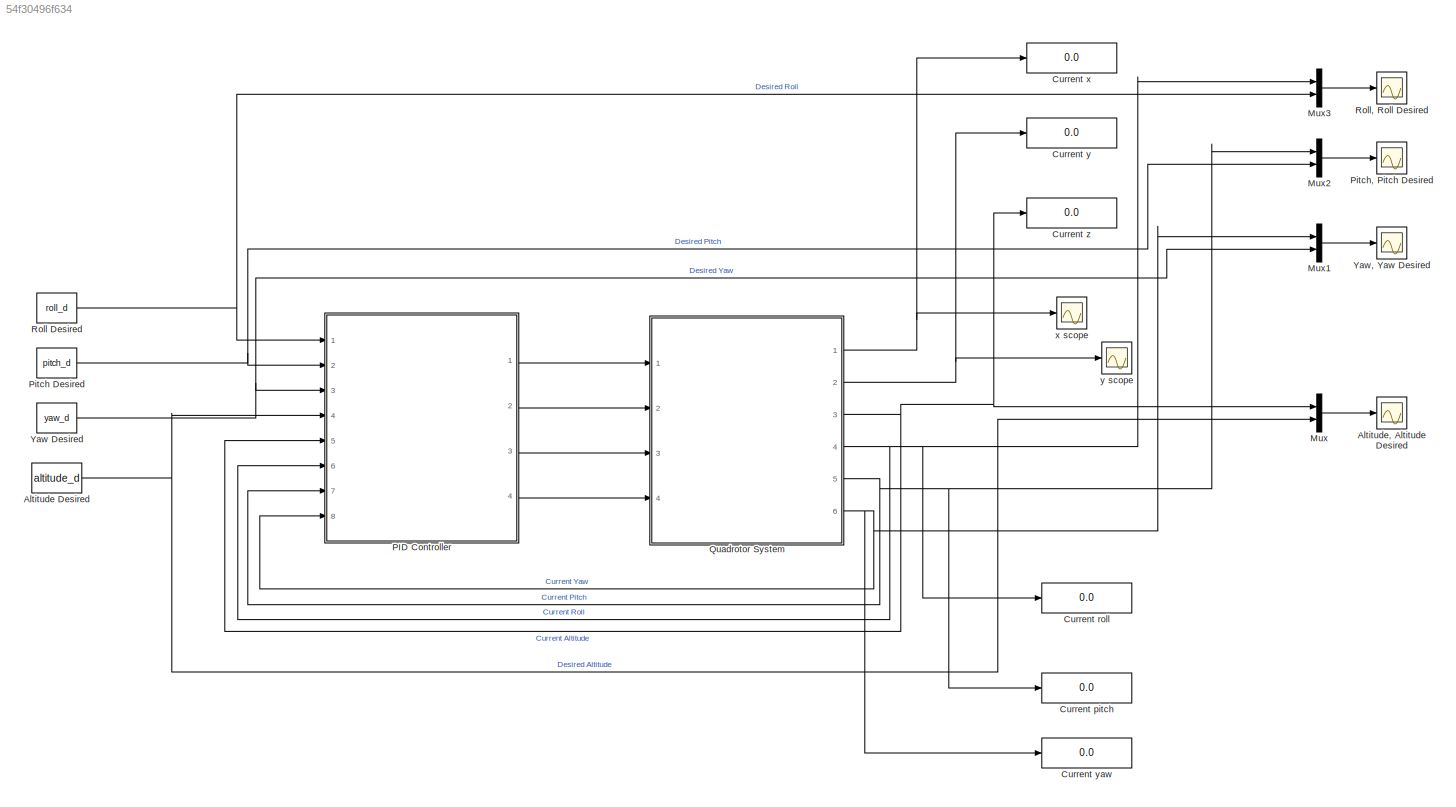
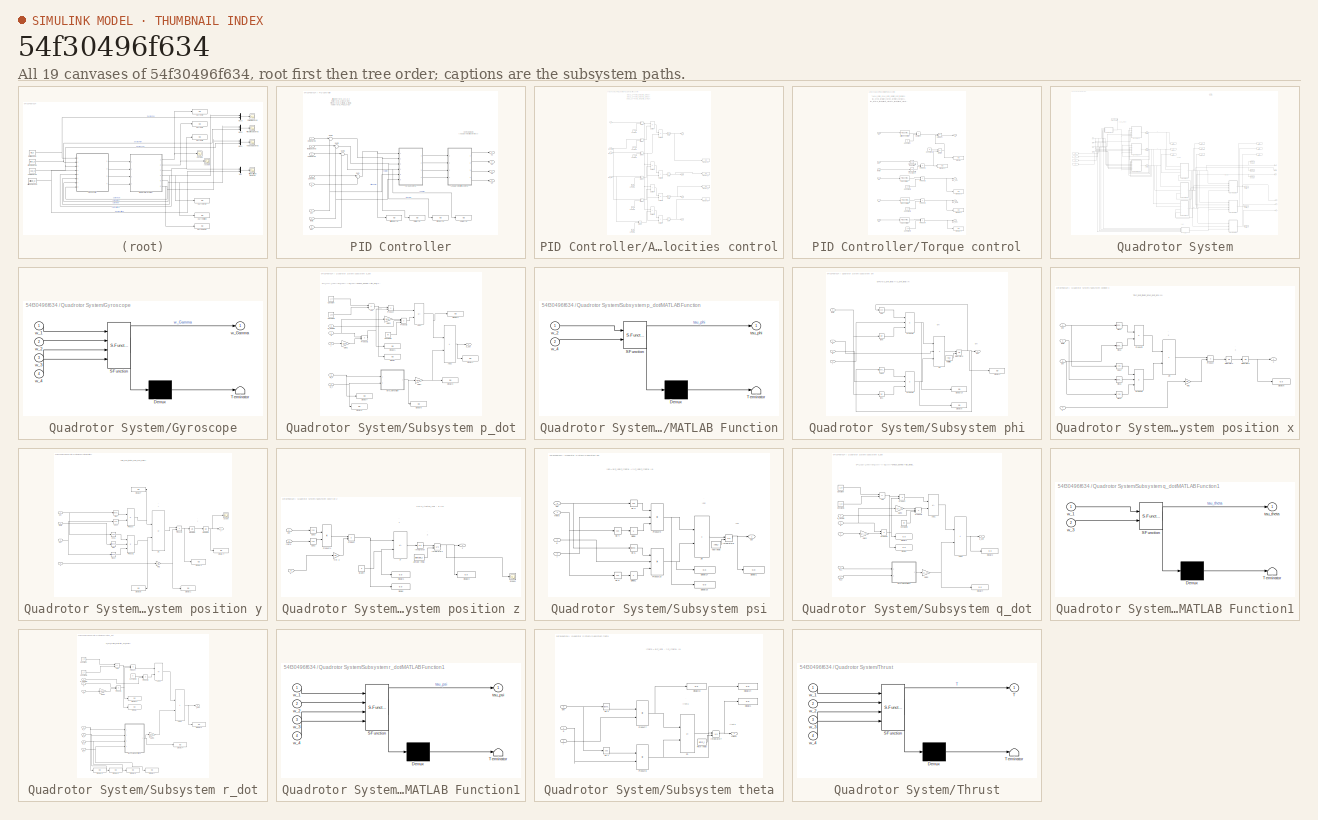
[diagram: thumbnail index - all 19 canvases of the model, root first then tree order]
MODEL slx_54f30496f634
KIND model
CONFIG AbsTol = auto
CONFIG EnableMultiTasking = off
CONFIG FixedStep = auto
CONFIG MaxStep = auto
CONFIG MinStep = auto
CONFIG RelTol = 1e-3
CONFIG SampleTimeConstraint = Unconstrained
CONFIG SolverName = ode45
CONFIG StartTime = 0.0
CONFIG StopTime = 10
BLOCK [Constant] Altitude Desired
  Value = altitude_d
BLOCK [Scope] Altitude, Altitude Desired
  Floating = off
  NumInputPorts = 1
  Ports = [1]
  ScopeSpecificationString = Simulink.scopes.TimeScopeBlockCfg('CurrentConfiguration', extmgr.ConfigurationSet(extmgr.Configuration('Core','General UI',true),extmgr.Configuration('Core','Source UI',true),extmgr.Configuration('Sources','WiredSimulink',true),extmgr.Configuration('Visuals','Time Domain',true,'SerializedDisplays',{struct('MinYLimReal','-0.37501','MaxYLimReal','3.37505','YLabelReal','','MinYLimMag','0.00000','MaxY...<+1426ch>
BLOCK [Display] Current pitch
  Decimation = 1
  Ports = [1]
BLOCK [Display] Current roll
  Decimation = 1
  Ports = [1]
BLOCK [Display] Current x
  Decimation = 1
  Ports = [1]
BLOCK [Display] Current y
  Decimation = 1
  Ports = [1]
BLOCK [Display] Current yaw
  Decimation = 1
  Ports = [1]
BLOCK [Display] Current z
  Decimation = 1
  Ports = [1]
BLOCK [Mux] Mux
  DisplayOption = bar
  Inputs = 2
  Ports = [2, 1]
BLOCK [Mux] Mux1
  DisplayOption = bar
  Inputs = 2
  Ports = [2, 1]
BLOCK [Mux] Mux2
  DisplayOption = bar
  Inputs = 2
  Ports = [2, 1]
BLOCK [Mux] Mux3
  DisplayOption = bar
  Inputs = 2
  Ports = [2, 1]
BLOCK [SubSystem] PID Controller
  Ports = [8, 4]
  RequestExecContextInheritance = off
BLOCK [Display] PID Controller/Altitude error
  Decimation = 1
  Ports = [1]
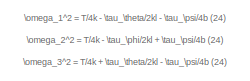
[diagram: PID Controller/Angular velocities control - part 1/3, top left region]
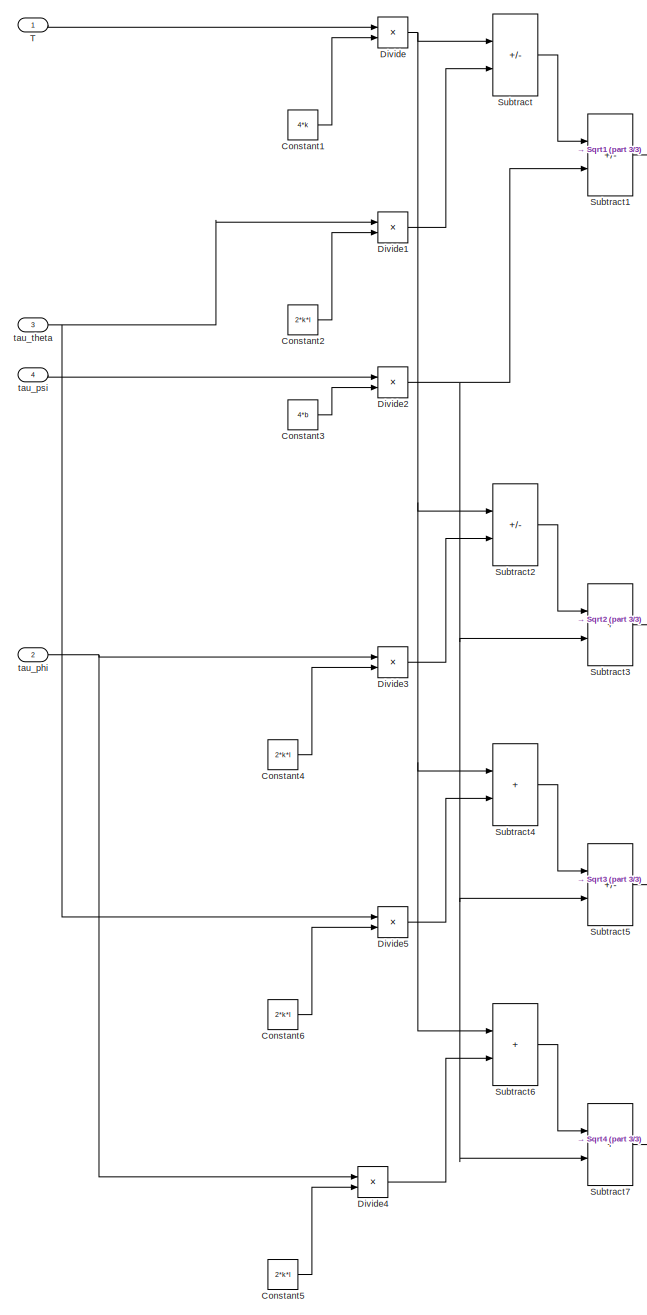
[diagram: PID Controller/Angular velocities control - part 2/3, left side, full height]
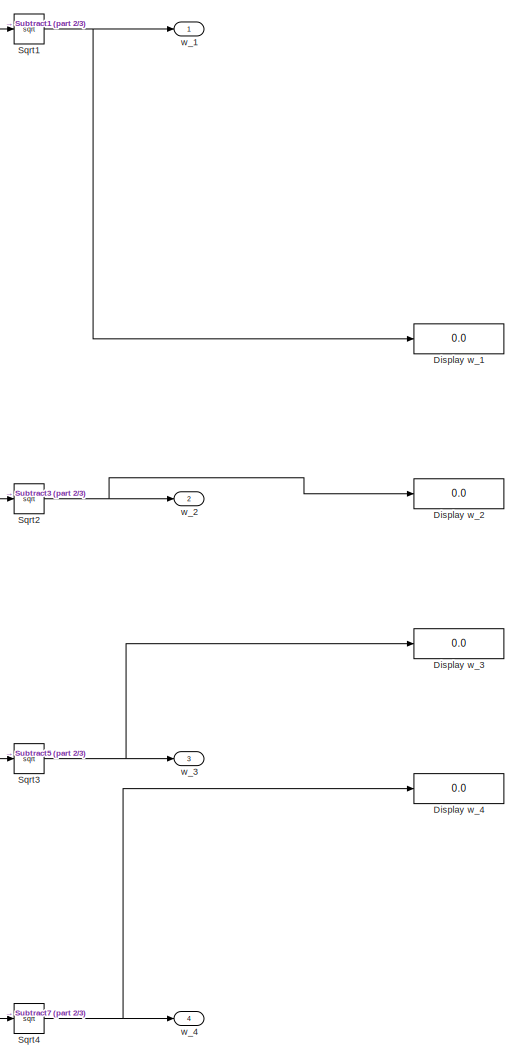
[diagram: PID Controller/Angular velocities control - part 3/3, middle right region]
BLOCK [SubSystem] PID Controller/Angular velocities control
  Ports = [4, 4]
  RequestExecContextInheritance = off
BLOCK [Constant] PID Controller/Angular velocities control/Constant1
  Value = 4*k
BLOCK [Constant] PID Controller/Angular velocities control/Constant2
  Value = 2*k*l
BLOCK [Constant] PID Controller/Angular velocities control/Constant3
  Value = 4*b
BLOCK [Constant] PID Controller/Angular velocities control/Constant4
  Value = 2*k*l
BLOCK [Constant] PID Controller/Angular velocities control/Constant5
  Value = 2*k*l
BLOCK [Constant] PID Controller/Angular velocities control/Constant6
  Value = 2*k*l
BLOCK [Display] PID Controller/Angular velocities control/Display w_1
  Decimation = 1
  Ports = [1]
BLOCK [Display] PID Controller/Angular velocities control/Display w_2
  Decimation = 1
  Ports = [1]
BLOCK [Display] PID Controller/Angular velocities control/Display w_3
  Decimation = 1
  Ports = [1]
BLOCK [Display] PID Controller/Angular velocities control/Display w_4
  Decimation = 1
  Ports = [1]
BLOCK [Product] PID Controller/Angular velocities control/Divide
  Inputs = */
  Ports = [2, 1]
BLOCK [Product] PID Controller/Angular velocities control/Divide1
  Inputs = */
  Ports = [2, 1]
BLOCK [Product] PID Controller/Angular velocities control/Divide2
  Inputs = */
  Ports = [2, 1]
BLOCK [Product] PID Controller/Angular velocities control/Divide3
  Inputs = */
  Ports = [2, 1]
BLOCK [Product] PID Controller/Angular velocities control/Divide4
  Inputs = */
  Ports = [2, 1]
BLOCK [Product] PID Controller/Angular velocities control/Divide5
  Inputs = */
  Ports = [2, 1]
BLOCK [Sqrt] PID Controller/Angular velocities control/Sqrt1
BLOCK [Sqrt] PID Controller/Angular velocities control/Sqrt2
  OutputSignalType = real
BLOCK [Sqrt] PID Controller/Angular velocities control/Sqrt3
BLOCK [Sqrt] PID Controller/Angular velocities control/Sqrt4
BLOCK [Sum] PID Controller/Angular velocities control/Subtract
  IconShape = rectangular
  Inputs = +-
  Ports = [2, 1]
BLOCK [Sum] PID Controller/Angular velocities control/Subtract1
  IconShape = rectangular
  Inputs = +-
  Ports = [2, 1]
BLOCK [Sum] PID Controller/Angular velocities control/Subtract2
  IconShape = rectangular
  Inputs = +-
  Ports = [2, 1]
BLOCK [Sum] PID Controller/Angular velocities control/Subtract3
  IconShape = rectangular
  Ports = [2, 1]
BLOCK [Sum] PID Controller/Angular velocities control/Subtract4
  IconShape = rectangular
  Ports = [2, 1]
BLOCK [Sum] PID Controller/Angular velocities control/Subtract5
  IconShape = rectangular
  Inputs = +-
  Ports = [2, 1]
BLOCK [Sum] PID Controller/Angular velocities control/Subtract6
  IconShape = rectangular
  Ports = [2, 1]
BLOCK [Sum] PID Controller/Angular velocities control/Subtract7
  IconShape = rectangular
  Ports = [2, 1]
BLOCK [Inport] PID Controller/Angular velocities control/T
BLOCK [Inport] PID Controller/Angular velocities control/tau_phi
  Port = 2
BLOCK [Inport] PID Controller/Angular velocities control/tau_psi 
  Port = 4
BLOCK [Inport] PID Controller/Angular velocities control/tau_theta
  Port = 3
BLOCK [Outport] PID Controller/Angular velocities control/w_1
BLOCK [Outport] PID Controller/Angular velocities control/w_2
  Port = 2
BLOCK [Outport] PID Controller/Angular velocities control/w_3
  Port = 3
BLOCK [Outport] PID Controller/Angular velocities control/w_4 
  Port = 4
BLOCK [Display] PID Controller/Pitch error
  Decimation = 1
  Ports = [1]
BLOCK [Display] PID Controller/Roll error
  Decimation = 1
  Ports = [1]
BLOCK [Sum] PID Controller/Sum
  Inputs = |+-
  Ports = [2, 1]
BLOCK [Sum] PID Controller/Sum1
  Inputs = |+-
  Ports = [2, 1]
BLOCK [Sum] PID Controller/Sum2
  Inputs = |+-
  Ports = [2, 1]
BLOCK [Sum] PID Controller/Sum3
  Inputs = |+-
  Ports = [2, 1]
BLOCK [SubSystem] PID Controller/Torque control
  Ports = [6, 4]
  RequestExecContextInheritance = off
BLOCK [Reference] PID Controller/Torque control/Altitude controller  REF=slpidlib/PID Controller
  Ports = [1, 1]
  SourceBlock = slpidlib/PID Controller
  SourceProductBaseCode = SL
  SourceType = PID 1dof
BLOCK [Constant] PID Controller/Torque control/Constant
  Value = g
BLOCK [Constant] PID Controller/Torque control/Constant1
  Value = m
BLOCK [Constant] PID Controller/Torque control/Constant2
  Value = I_xx
BLOCK [Constant] PID Controller/Torque control/Constant3
  Value = I_yy
BLOCK [Constant] PID Controller/Torque control/Constant4
  Value = I_zz
BLOCK [Display] PID Controller/Torque control/Display
  Decimation = 1
  Ports = [1]
BLOCK [Display] PID Controller/Torque control/Display1
  Decimation = 1
  Ports = [1]
BLOCK [Display] PID Controller/Torque control/Display2
  Decimation = 1
  Ports = [1]
BLOCK [Display] PID Controller/Torque control/Display3
  Decimation = 1
  Ports = [1]
BLOCK [Display] PID Controller/Torque control/Display4
  Decimation = 1
  Ports = [1]
BLOCK [Product] PID Controller/Torque control/Divide
  Inputs = */
  Ports = [2, 1]
BLOCK [Reference] PID Controller/Torque control/Pitch controller  REF=slpidlib/PID Controller
  Ports = [1, 1]
  SourceBlock = slpidlib/PID Controller
  SourceProductBaseCode = SL
  SourceType = PID 1dof
BLOCK [Product] PID Controller/Torque control/Product
  Ports = [2, 1]
BLOCK [Product] PID Controller/Torque control/Product1
  Ports = [2, 1]
BLOCK [Product] PID Controller/Torque control/Product2
  Ports = [2, 1]
BLOCK [Product] PID Controller/Torque control/Product3
  Ports = [2, 1]
BLOCK [Product] PID Controller/Torque control/Product4
  Ports = [2, 1]
BLOCK [Reference] PID Controller/Torque control/Roll controller  REF=slpidlib/PID Controller
  Ports = [1, 1]
  SourceBlock = slpidlib/PID Controller
  SourceProductBaseCode = SL
  SourceType = PID 1dof
BLOCK [Sum] PID Controller/Torque control/Subtract
  IconShape = rectangular
  Ports = [2, 1]
BLOCK [Outport] PID Controller/Torque control/T
BLOCK [Trigonometry] PID Controller/Torque control/Trigonometric Function
  Operator = cos
  Ports = [1, 1]
BLOCK [Trigonometry] PID Controller/Torque control/Trigonometric Function1
  Operator = cos
  Ports = [1, 1]
BLOCK [Reference] PID Controller/Torque control/Yaw controller  REF=slpidlib/PID Controller
  Ports = [1, 1]
  SourceBlock = slpidlib/PID Controller
  SourceProductBaseCode = SL
  SourceType = PID 1dof
BLOCK [Inport] PID Controller/Torque control/e1
BLOCK [Inport] PID Controller/Torque control/e2
  Port = 2
BLOCK [Inport] PID Controller/Torque control/e3
  Port = 3
BLOCK [Inport] PID Controller/Torque control/e4
  Port = 4
BLOCK [Inport] PID Controller/Torque control/phi 
  Port = 5
BLOCK [Outport] PID Controller/Torque control/tau_phi
  Port = 2
BLOCK [Outport] PID Controller/Torque control/tau_psi
  Port = 4
BLOCK [Outport] PID Controller/Torque control/tau_theta
  Port = 3
BLOCK [Inport] PID Controller/Torque control/theta 
  Port = 6
BLOCK [Display] PID Controller/Yaw error
  Decimation = 1
  Ports = [1]
BLOCK [Inport] PID Controller/phi
  Port = 6
BLOCK [Inport] PID Controller/phi desired
BLOCK [Inport] PID Controller/psi
  Port = 8
BLOCK [Inport] PID Controller/psi desired
  Port = 3
BLOCK [Inport] PID Controller/theta
  Port = 7
BLOCK [Inport] PID Controller/theta desired
  Port = 2
BLOCK [Outport] PID Controller/u1
BLOCK [Outport] PID Controller/u2
  Port = 2
BLOCK [Outport] PID Controller/u3
  Port = 3
BLOCK [Outport] PID Controller/u4
  Port = 4
BLOCK [Inport] PID Controller/z
  Port = 5
BLOCK [Inport] PID Controller/z desired
  Port = 4
BLOCK [Constant] Pitch Desired
  Value = pitch_d
BLOCK [Scope] Pitch, Pitch Desired
  Floating = off
  NumInputPorts = 1
  Ports = [1]
  ScopeSpecificationString = Simulink.scopes.TimeScopeBlockCfg('CurrentConfiguration', extmgr.ConfigurationSet(extmgr.Configuration('Core','General UI',true),extmgr.Configuration('Core','Source UI',true),extmgr.Configuration('Sources','WiredSimulink',true,'DataLoggingVariableName','ScopeData3'),extmgr.Configuration('Visuals','Time Domain',true,'SerializedDisplays',{struct('MinYLimReal','-1.0697','MaxYLimReal','0.62726','YLabe...<+1465ch>
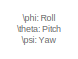
[diagram: Quadrotor System - part 1/10, top right region]
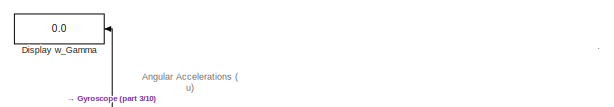
[diagram: Quadrotor System - part 2/10, top left region]
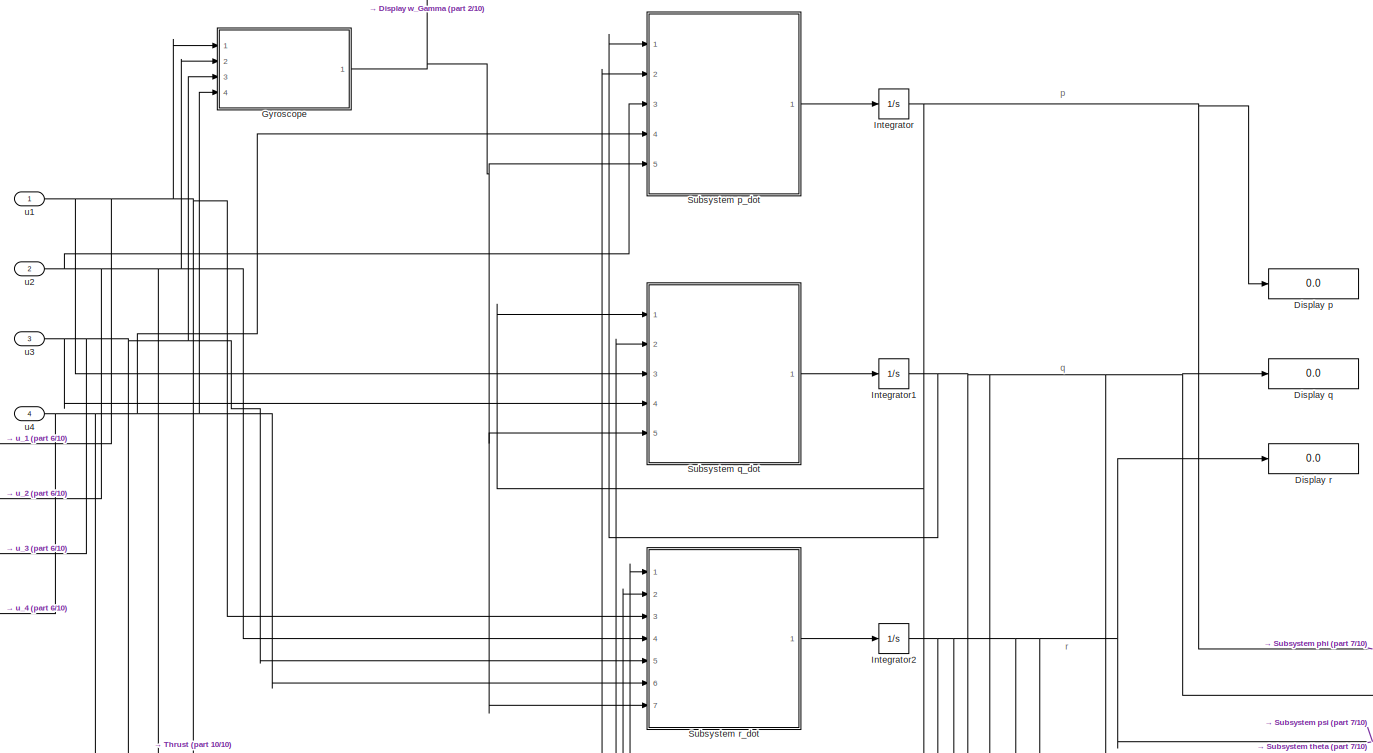
[diagram: Quadrotor System - part 3/10, middle left region]
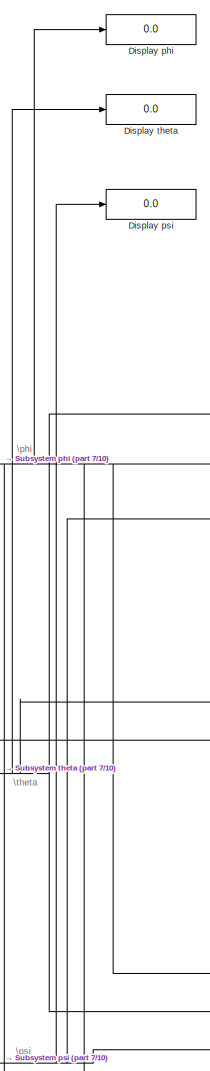
[diagram: Quadrotor System - part 4/10, central region]
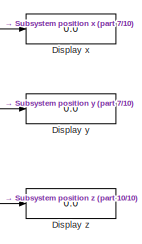
[diagram: Quadrotor System - part 5/10, middle right region]
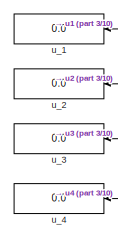
[diagram: Quadrotor System - part 6/10, middle left region]
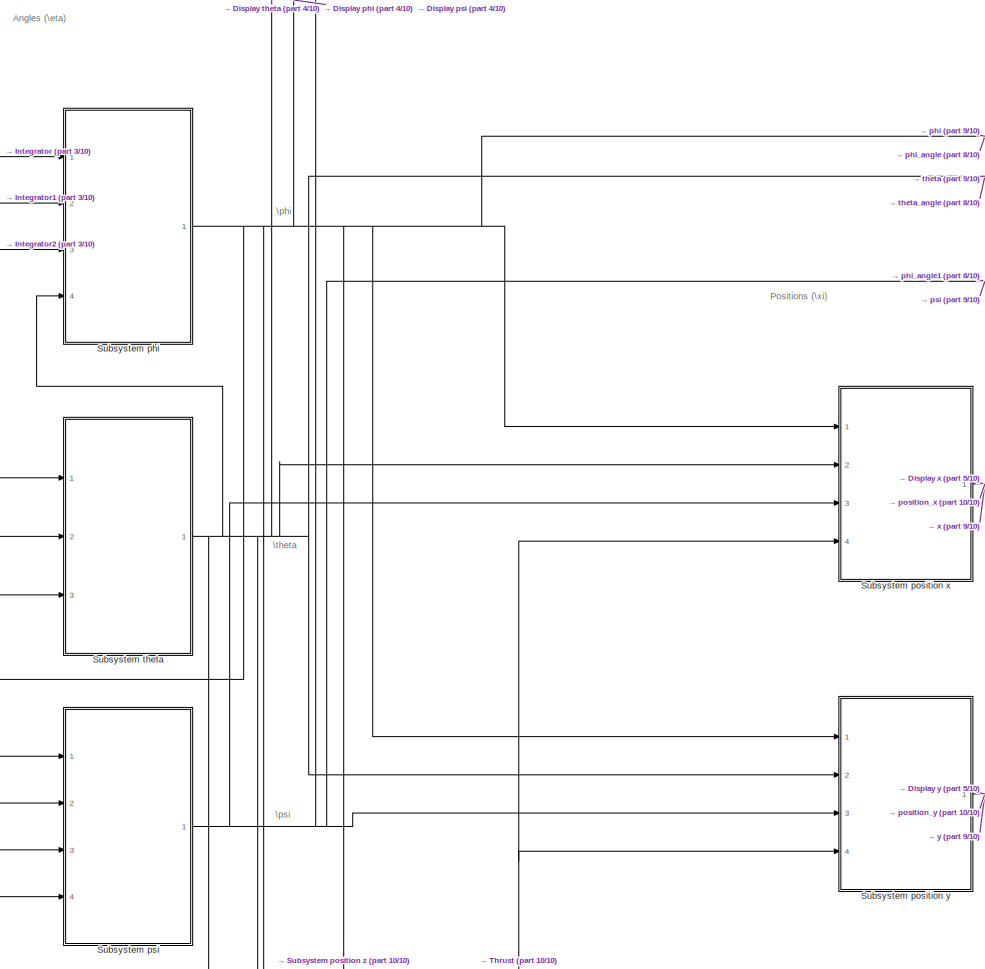
[diagram: Quadrotor System - part 7/10, central region]
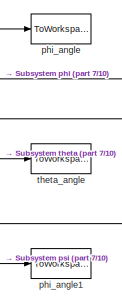
[diagram: Quadrotor System - part 8/10, middle right region]
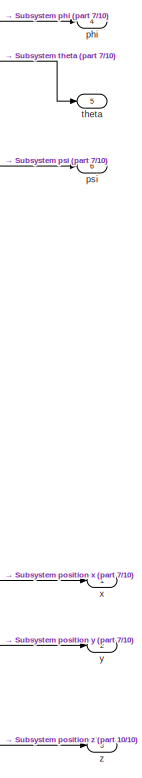
[diagram: Quadrotor System - part 9/10, bottom right region]
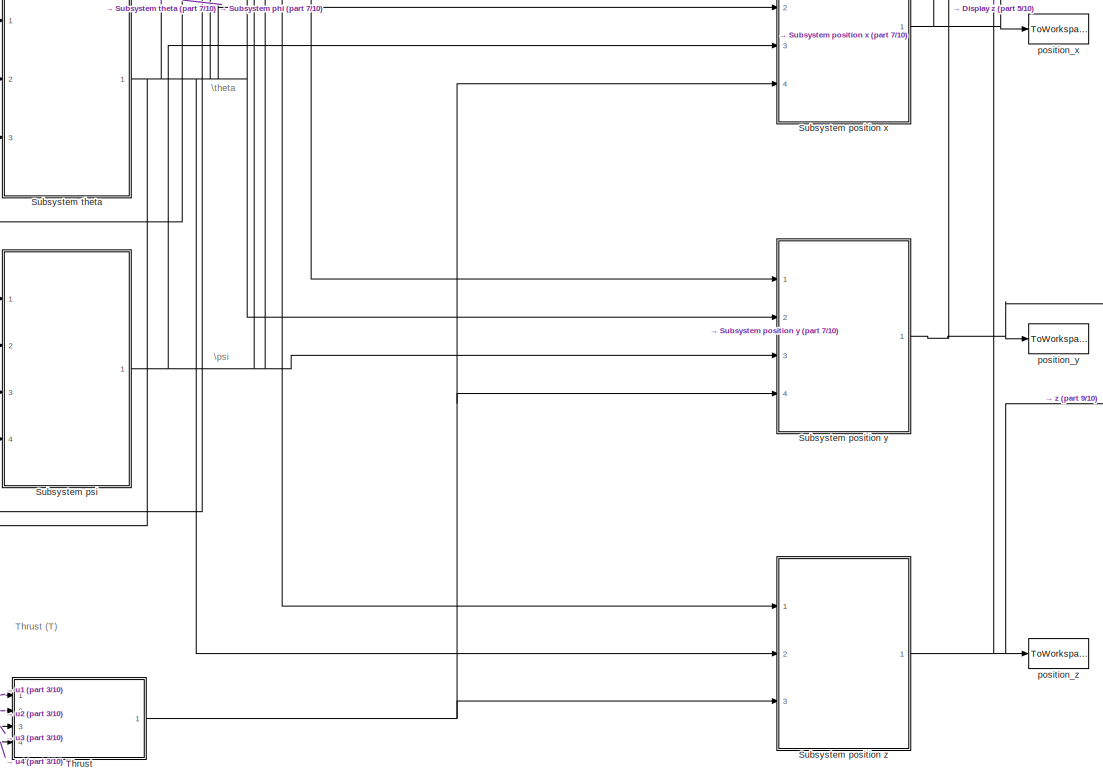
[diagram: Quadrotor System - part 10/10, bottom right region]
BLOCK [SubSystem] Quadrotor System
  Ports = [4, 6]
  RequestExecContextInheritance = off
BLOCK [Display] Quadrotor System/Display p
  Decimation = 1
  Ports = [1]
BLOCK [Display] Quadrotor System/Display phi
  Decimation = 1
  Ports = [1]
BLOCK [Display] Quadrotor System/Display psi
  Decimation = 1
  Ports = [1]
BLOCK [Display] Quadrotor System/Display q
  Decimation = 1
  Ports = [1]
BLOCK [Display] Quadrotor System/Display r
  Decimation = 1
  Ports = [1]
BLOCK [Display] Quadrotor System/Display theta
  Decimation = 1
  Ports = [1]
BLOCK [Display] Quadrotor System/Display w_Gamma
  Decimation = 1
  NameLocation = top
  Ports = [1]
BLOCK [Display] Quadrotor System/Display x
  Decimation = 1
  Ports = [1]
BLOCK [Display] Quadrotor System/Display y
  Decimation = 1
  Ports = [1]
BLOCK [Display] Quadrotor System/Display z
  Decimation = 1
  Ports = [1]
BLOCK [SubSystem] Quadrotor System/Gyroscope
  ErrorFcn = Stateflow.Translate.translate
  PermitHierarchicalResolution = ExplicitOnly
  Ports = [4, 1]
  RequestExecContextInheritance = off
  SFBlockType = MATLAB Function
  TreatAsAtomicUnit = on
BLOCK [Demux] Quadrotor System/Gyroscope/ Demux 
  Outputs = 1
  Ports = [1, 1]
BLOCK [S-Function] Quadrotor System/Gyroscope/ SFunction 
  EnableBusSupport = on
  FunctionName = sf_sfun
  PortCounts = [4 2]
  Ports = [4, 2]
  SFcnIsStateOwnerBlock = off
  SFunctionDeploymentMode = off
  Tag = Stateflow S-Function 7
BLOCK [Terminator] Quadrotor System/Gyroscope/ Terminator 
BLOCK [Inport] Quadrotor System/Gyroscope/w_1
BLOCK [Inport] Quadrotor System/Gyroscope/w_2
  Port = 2
BLOCK [Inport] Quadrotor System/Gyroscope/w_3
  Port = 3
BLOCK [Inport] Quadrotor System/Gyroscope/w_4
  Port = 4
BLOCK [Outport] Quadrotor System/Gyroscope/w_Gamma
BLOCK [Integrator] Quadrotor System/Integrator
  Ports = [1, 1]
BLOCK [Integrator] Quadrotor System/Integrator1
  Ports = [1, 1]
BLOCK [Integrator] Quadrotor System/Integrator2
  Ports = [1, 1]
BLOCK [SubSystem] Quadrotor System/Subsystem p_dot
  Ports = [5, 1]
  RequestExecContextInheritance = off
BLOCK [Sum] Quadrotor System/Subsystem p_dot/Add
  IconShape = rectangular
  Inputs = +-
  Ports = [2, 1]
BLOCK [Sum] Quadrotor System/Subsystem p_dot/Add1
  IconShape = rectangular
  Inputs = +-
  Ports = [2, 1]
BLOCK [Sum] Quadrotor System/Subsystem p_dot/Add2
  IconShape = rectangular
  Ports = [2, 1]
BLOCK [Constant] Quadrotor System/Subsystem p_dot/Constant
  Value = I_yy
BLOCK [Constant] Quadrotor System/Subsystem p_dot/Constant1
  Value = I_zz
BLOCK [Constant] Quadrotor System/Subsystem p_dot/Constant2
  Value = Im
BLOCK [Display] Quadrotor System/Subsystem p_dot/Display
  Decimation = 1
  Ports = [1]
BLOCK [Display] Quadrotor System/Subsystem p_dot/Display1
  Decimation = 1
  Ports = [1]
BLOCK [Display] Quadrotor System/Subsystem p_dot/Display2
  Decimation = 1
  Ports = [1]
BLOCK [Display] Quadrotor System/Subsystem p_dot/Display3
  Decimation = 1
  Ports = [1]
BLOCK [Display] Quadrotor System/Subsystem p_dot/Display4
  Decimation = 1
  Ports = [1]
BLOCK [Display] Quadrotor System/Subsystem p_dot/Display5
  Decimation = 1
  Ports = [1]
BLOCK [Display] Quadrotor System/Subsystem p_dot/Display6
  Decimation = 1
  Ports = [1]
BLOCK [Display] Quadrotor System/Subsystem p_dot/Display7
  Decimation = 1
  Ports = [1]
BLOCK [Gain] Quadrotor System/Subsystem p_dot/Gain2
  Gain = 1/I_xx
BLOCK [Gain] Quadrotor System/Subsystem p_dot/Gain3
  Gain = 1/I_xx
BLOCK [Gain] Quadrotor System/Subsystem p_dot/Gain4
  Gain = 1/I_xx
BLOCK [SubSystem] Quadrotor System/Subsystem p_dot/MATLAB Function
  ErrorFcn = Stateflow.Translate.translate
  PermitHierarchicalResolution = ExplicitOnly
  Ports = [2, 1]
  RequestExecContextInheritance = off
  SFBlockType = MATLAB Function
  TreatAsAtomicUnit = on
BLOCK [Demux] Quadrotor System/Subsystem p_dot/MATLAB Function/ Demux 
  Outputs = 1
  Ports = [1, 1]
BLOCK [S-Function] Quadrotor System/Subsystem p_dot/MATLAB Function/ SFunction 
  EnableBusSupport = on
  FunctionName = sf_sfun
  PortCounts = [2 2]
  Ports = [2, 2]
  SFcnIsStateOwnerBlock = off
  SFunctionDeploymentMode = off
  Tag = Stateflow S-Function 2
BLOCK [Terminator] Quadrotor System/Subsystem p_dot/MATLAB Function/ Terminator 
BLOCK [Outport] Quadrotor System/Subsystem p_dot/MATLAB Function/tau_phi
BLOCK [Inport] Quadrotor System/Subsystem p_dot/MATLAB Function/w_2
BLOCK [Inport] Quadrotor System/Subsystem p_dot/MATLAB Function/w_4
  Port = 2
BLOCK [Product] Quadrotor System/Subsystem p_dot/Product
  Ports = [2, 1]
BLOCK [Product] Quadrotor System/Subsystem p_dot/Product1
  Ports = [2, 1]
BLOCK [Product] Quadrotor System/Subsystem p_dot/Product2
  Inputs = 3
  Ports = [3, 1]
BLOCK [Outport] Quadrotor System/Subsystem p_dot/p_dot
BLOCK [Inport] Quadrotor System/Subsystem p_dot/q
BLOCK [Inport] Quadrotor System/Subsystem p_dot/r
  Port = 2
BLOCK [Inport] Quadrotor System/Subsystem p_dot/w_2
  Port = 3
BLOCK [Inport] Quadrotor System/Subsystem p_dot/w_4
  Port = 4
BLOCK [Inport] Quadrotor System/Subsystem p_dot/w_Gamma 
  Port = 5
BLOCK [SubSystem] Quadrotor System/Subsystem phi
  Ports = [4, 1]
  RequestExecContextInheritance = off
BLOCK [Display] Quadrotor System/Subsystem phi/Display1
  Decimation = 1
  Ports = [1]
BLOCK [Display] Quadrotor System/Subsystem phi/Display10
  Decimation = 1
  Ports = [1]
BLOCK [Display] Quadrotor System/Subsystem phi/Display9
  Decimation = 1
  Ports = [1]
BLOCK [Integrator] Quadrotor System/Subsystem phi/Integrator6
  InitialCondition = -0.1
  InitialConditionSource = external
  Ports = [2, 1]
BLOCK [Product] Quadrotor System/Subsystem phi/Product5
  Inputs = 3
  Ports = [3, 1]
BLOCK [Product] Quadrotor System/Subsystem phi/Product6
  Inputs = 3
  Ports = [3, 1]
BLOCK [Constant] Quadrotor System/Subsystem phi/Roll Initial
  Value = roll_i
BLOCK [Sum] Quadrotor System/Subsystem phi/Z''3
  IconShape = rectangular
  Inputs = +++
  Ports = [3, 1]
BLOCK [Trigonometry] Quadrotor System/Subsystem phi/cos 
  Operator = cos
  Ports = [1, 1]
BLOCK [Trigonometry] Quadrotor System/Subsystem phi/cos 1
  Ports = [1, 1]
BLOCK [Inport] Quadrotor System/Subsystem phi/p
BLOCK [Outport] Quadrotor System/Subsystem phi/phi 
BLOCK [Inport] Quadrotor System/Subsystem phi/q
  Port = 2
BLOCK [Inport] Quadrotor System/Subsystem phi/r
  Port = 3
BLOCK [Trigonometry] Quadrotor System/Subsystem phi/tan 1
  Operator = tan
  Ports = [1, 1]
BLOCK [Trigonometry] Quadrotor System/Subsystem phi/tan 5
  Operator = tan
  Ports = [1, 1]
BLOCK [Inport] Quadrotor System/Subsystem phi/theta
  Port = 4
BLOCK [SubSystem] Quadrotor System/Subsystem position x
  Ports = [4, 1]
  RequestExecContextInheritance = off
BLOCK [Trigonometry] Quadrotor System/Subsystem position x/Cos1
  Operator = cos
  Ports = [1, 1]
BLOCK [Display] Quadrotor System/Subsystem position x/Display6
  Decimation = 1
  Ports = [1]
BLOCK [Integrator] Quadrotor System/Subsystem position x/Integrator4
  Ports = [1, 1]
BLOCK [Integrator] Quadrotor System/Subsystem position x/Integrator5
  Ports = [1, 1]
BLOCK [Product] Quadrotor System/Subsystem position x/Product
  Ports = [2, 1]
BLOCK [Product] Quadrotor System/Subsystem position x/Product2
  Ports = [2, 1]
BLOCK [Product] Quadrotor System/Subsystem position x/Product3
  Inputs = 3
  Ports = [3, 1]
BLOCK [Trigonometry] Quadrotor System/Subsystem position x/Sin1 1
  Ports = [1, 1]
BLOCK [Trigonometry] Quadrotor System/Subsystem position x/Sin1 2
  Ports = [1, 1]
BLOCK [Trigonometry] Quadrotor System/Subsystem position x/Sin1 3
  Ports = [1, 1]
BLOCK [Trigonometry] Quadrotor System/Subsystem position x/Sin1 4
  Operator = cos
  Ports = [1, 1]
BLOCK [Inport] Quadrotor System/Subsystem position x/T
  Port = 4
BLOCK [Gain] Quadrotor System/Subsystem position x/T//m 2
  Gain = 1/m
BLOCK [Sum] Quadrotor System/Subsystem position x/Z''2
  IconShape = rectangular
  Ports = [2, 1]
BLOCK [Inport] Quadrotor System/Subsystem position x/phi 
BLOCK [Inport] Quadrotor System/Subsystem position x/psi 
  Port = 3
BLOCK [Inport] Quadrotor System/Subsystem position x/theta 
  Port = 2
BLOCK [Outport] Quadrotor System/Subsystem position x/x
BLOCK [SubSystem] Quadrotor System/Subsystem position y
  Ports = [4, 1]
  RequestExecContextInheritance = off
BLOCK [Trigonometry] Quadrotor System/Subsystem position y/Cos4
  Operator = cos
  Ports = [1, 1]
BLOCK [Trigonometry] Quadrotor System/Subsystem position y/Cos5
  Operator = cos
  Ports = [1, 1]
BLOCK [Display] Quadrotor System/Subsystem position y/Display1
  Decimation = 1
  Ports = [1]
BLOCK [Display] Quadrotor System/Subsystem position y/Display3
  Decimation = 1
  Ports = [1]
BLOCK [Display] Quadrotor System/Subsystem position y/Display4
  Decimation = 1
  Ports = [1]
BLOCK [Display] Quadrotor System/Subsystem position y/Display7
  Decimation = 1
  NameLocation = top
  Ports = [1]
BLOCK [Display] Quadrotor System/Subsystem position y/Display8
  Decimation = 1
  NameLocation = top
  Ports = [1]
BLOCK [Integrator] Quadrotor System/Subsystem position y/Integrator2
  Ports = [1, 1]
BLOCK [Integrator] Quadrotor System/Subsystem position y/Integrator3
  Ports = [1, 1]
BLOCK [Product] Quadrotor System/Subsystem position y/Product
  Ports = [2, 1]
BLOCK [Product] Quadrotor System/Subsystem position y/Product1
  Inputs = 3
  Ports = [3, 1]
BLOCK [Product] Quadrotor System/Subsystem position y/Product2
  Ports = [2, 1]
BLOCK [Scope] Quadrotor System/Subsystem position y/Scope
  Floating = off
  NumInputPorts = 1
  Ports = [1]
  ScopeSpecificationString = Simulink.scopes.TimeScopeBlockCfg('CurrentConfiguration', extmgr.ConfigurationSet(extmgr.Configuration('Core','General UI',true),extmgr.Configuration('Core','Source UI',true),extmgr.Configuration('Sources','WiredSimulink',true),extmgr.Configuration('Visuals','Time Domain',true,'SerializedDisplays',{struct('MinYLimReal','-1179.08654','MaxYLimReal','131.00962','YLabelReal','','MinYLimMag','  0.00000...<+1453ch>
BLOCK [Trigonometry] Quadrotor System/Subsystem position y/Sin1 
  Ports = [1, 1]
BLOCK [Trigonometry] Quadrotor System/Subsystem position y/Sin2 
  Ports = [1, 1]
BLOCK [Trigonometry] Quadrotor System/Subsystem position y/Sin2 1
  Ports = [1, 1]
BLOCK [Inport] Quadrotor System/Subsystem position y/T 
  Port = 4
BLOCK [Gain] Quadrotor System/Subsystem position y/T//m 2
  Gain = 1/m
BLOCK [Sum] Quadrotor System/Subsystem position y/Z''1
  IconShape = rectangular
  Inputs = -+
  Ports = [2, 1]
BLOCK [Inport] Quadrotor System/Subsystem position y/phi 
BLOCK [Inport] Quadrotor System/Subsystem position y/psi 
  Port = 3
BLOCK [Inport] Quadrotor System/Subsystem position y/theta 
  Port = 2
BLOCK [Outport] Quadrotor System/Subsystem position y/y 
BLOCK [SubSystem] Quadrotor System/Subsystem position z
  Ports = [3, 1]
  RequestExecContextInheritance = off
BLOCK [Constant] Quadrotor System/Subsystem position z/Altitude Initial
  Value = altitude_i
BLOCK [Trigonometry] Quadrotor System/Subsystem position z/Cos2
  Operator = cos
  Ports = [1, 1]
BLOCK [Trigonometry] Quadrotor System/Subsystem position z/Cos3
  Operator = cos
  Ports = [1, 1]
BLOCK [Display] Quadrotor System/Subsystem position z/Display
  Decimation = 1
  Ports = [1]
BLOCK [Display] Quadrotor System/Subsystem position z/Display1
  Decimation = 1
  Ports = [1]
BLOCK [Display] Quadrotor System/Subsystem position z/Display2
  Decimation = 1
  Ports = [1]
BLOCK [Constant] Quadrotor System/Subsystem position z/Gravity
  Value = g
BLOCK [Integrator] Quadrotor System/Subsystem position z/Integrator
  Ports = [1, 1]
BLOCK [Integrator] Quadrotor System/Subsystem position z/Integrator1
  InitialConditionSource = external
  Ports = [2, 1]
BLOCK [Product] Quadrotor System/Subsystem position z/Product
  Ports = [2, 1]
BLOCK [Product] Quadrotor System/Subsystem position z/Product4
  Ports = [2, 1]
BLOCK [Scope] Quadrotor System/Subsystem position z/Scope1
  Floating = off
  NumInputPorts = 1
  Ports = [1]
  ScopeSpecificationString = Simulink.scopes.TimeScopeBlockCfg('CurrentConfiguration', extmgr.ConfigurationSet(extmgr.Configuration('Core','General UI',true),extmgr.Configuration('Core','Source UI',true),extmgr.Configuration('Sources','WiredSimulink',true,'DataLoggingVariableName','ScopeData1'),extmgr.Configuration('Visuals','Time Domain',true,'SerializedDisplays',{struct('MinYLimReal','-1.00000','MaxYLimReal','1.00000','YLab...<+1443ch>
BLOCK [Inport] Quadrotor System/Subsystem position z/T
  Port = 3
BLOCK [Gain] Quadrotor System/Subsystem position z/T//m 2
  Gain = 1/m
BLOCK [Sum] Quadrotor System/Subsystem position z/Z''
  IconShape = rectangular
  Inputs = +-
  Ports = [2, 1]
BLOCK [Inport] Quadrotor System/Subsystem position z/phi 
BLOCK [Inport] Quadrotor System/Subsystem position z/theta 
  Port = 2
BLOCK [Outport] Quadrotor System/Subsystem position z/z
BLOCK [SubSystem] Quadrotor System/Subsystem psi
  Ports = [4, 1]
  RequestExecContextInheritance = off
BLOCK [Display] Quadrotor System/Subsystem psi/Display1
  Decimation = 1
  Ports = [1]
BLOCK [Display] Quadrotor System/Subsystem psi/Display16
  Decimation = 1
  Ports = [1]
BLOCK [Display] Quadrotor System/Subsystem psi/Display17
  Decimation = 1
  Ports = [1]
BLOCK [Product] Quadrotor System/Subsystem psi/Divide
  Inputs = /
  Ports = [1, 1]
BLOCK [Product] Quadrotor System/Subsystem psi/Divide1
  Inputs = /
  Ports = [1, 1]
BLOCK [Integrator] Quadrotor System/Subsystem psi/Integrator8
  InitialCondition = -pi
  InitialConditionSource = external
  Ports = [2, 1]
BLOCK [Product] Quadrotor System/Subsystem psi/Product10
  Inputs = 3
  Ports = [3, 1]
BLOCK [Product] Quadrotor System/Subsystem psi/Product9
  Inputs = 3
  Ports = [3, 1]
BLOCK [Constant] Quadrotor System/Subsystem psi/Yaw Initial
  Value = yaw_i
BLOCK [Sum] Quadrotor System/Subsystem psi/Z''5
  IconShape = rectangular
  Ports = [2, 1]
BLOCK [Inport] Quadrotor System/Subsystem psi/phi
  Port = 3
BLOCK [Outport] Quadrotor System/Subsystem psi/psi
BLOCK [Inport] Quadrotor System/Subsystem psi/q
BLOCK [Inport] Quadrotor System/Subsystem psi/r
  Port = 2
BLOCK [Trigonometry] Quadrotor System/Subsystem psi/sin 3
  Operator = cos
  Ports = [1, 1]
BLOCK [Trigonometry] Quadrotor System/Subsystem psi/sin 4
  Operator = cos
  Ports = [1, 1]
BLOCK [Trigonometry] Quadrotor System/Subsystem psi/sin 5
  Ports = [1, 1]
BLOCK [Trigonometry] Quadrotor System/Subsystem psi/sin 6
  Operator = cos
  Ports = [1, 1]
BLOCK [Inport] Quadrotor System/Subsystem psi/theta
  Port = 4
BLOCK [SubSystem] Quadrotor System/Subsystem q_dot
  Ports = [5, 1]
  RequestExecContextInheritance = off
BLOCK [Sum] Quadrotor System/Subsystem q_dot/Add
  IconShape = rectangular
  Inputs = +-
  Ports = [2, 1]
BLOCK [Sum] Quadrotor System/Subsystem q_dot/Add1
  IconShape = rectangular
  Inputs = +-
  Ports = [2, 1]
BLOCK [Sum] Quadrotor System/Subsystem q_dot/Add3
  IconShape = rectangular
  Ports = [2, 1]
BLOCK [Constant] Quadrotor System/Subsystem q_dot/Constant
  Value = I_zz
BLOCK [Constant] Quadrotor System/Subsystem q_dot/Constant1
  Value = I_xx
BLOCK [Constant] Quadrotor System/Subsystem q_dot/Constant3
  Value = Im
BLOCK [Display] Quadrotor System/Subsystem q_dot/Display
  Decimation = 1
  Ports = [1]
BLOCK [Display] Quadrotor System/Subsystem q_dot/Display1
  Decimation = 1
  Ports = [1]
BLOCK [Display] Quadrotor System/Subsystem q_dot/Display2
  Decimation = 1
  Ports = [1]
BLOCK [Display] Quadrotor System/Subsystem q_dot/Display4
  Decimation = 1
  Ports = [1]
BLOCK [Gain] Quadrotor System/Subsystem q_dot/Gain2
  Gain = 1/I_yy
BLOCK [Gain] Quadrotor System/Subsystem q_dot/Gain3
  Gain = -1/I_yy
BLOCK [Gain] Quadrotor System/Subsystem q_dot/Gain5
  Gain = 1/I_yy
BLOCK [SubSystem] Quadrotor System/Subsystem q_dot/MATLAB Function1
  ErrorFcn = Stateflow.Translate.translate
  PermitHierarchicalResolution = ExplicitOnly
  Ports = [2, 1]
  RequestExecContextInheritance = off
  SFBlockType = MATLAB Function
  TreatAsAtomicUnit = on
BLOCK [Demux] Quadrotor System/Subsystem q_dot/MATLAB Function1/ Demux 
  Outputs = 1
  Ports = [1, 1]
BLOCK [S-Function] Quadrotor System/Subsystem q_dot/MATLAB Function1/ SFunction 
  EnableBusSupport = on
  FunctionName = sf_sfun
  PortCounts = [2 2]
  Ports = [2, 2]
  SFcnIsStateOwnerBlock = off
  SFunctionDeploymentMode = off
  Tag = Stateflow S-Function 3
BLOCK [Terminator] Quadrotor System/Subsystem q_dot/MATLAB Function1/ Terminator 
BLOCK [Outport] Quadrotor System/Subsystem q_dot/MATLAB Function1/tau_theta
BLOCK [Inport] Quadrotor System/Subsystem q_dot/MATLAB Function1/w_1
BLOCK [Inport] Quadrotor System/Subsystem q_dot/MATLAB Function1/w_3
  Port = 2
BLOCK [Product] Quadrotor System/Subsystem q_dot/Product
  Ports = [2, 1]
BLOCK [Product] Quadrotor System/Subsystem q_dot/Product1
  Ports = [2, 1]
BLOCK [Product] Quadrotor System/Subsystem q_dot/Product2
  Inputs = 3
  Ports = [3, 1]
BLOCK [Inport] Quadrotor System/Subsystem q_dot/p 
BLOCK [Outport] Quadrotor System/Subsystem q_dot/q_dot
BLOCK [Inport] Quadrotor System/Subsystem q_dot/r
  Port = 2
BLOCK [Inport] Quadrotor System/Subsystem q_dot/w_1
  Port = 3
BLOCK [Inport] Quadrotor System/Subsystem q_dot/w_3
  Port = 4
BLOCK [Inport] Quadrotor System/Subsystem q_dot/w_Gamma 
  Port = 5
BLOCK [SubSystem] Quadrotor System/Subsystem r_dot
  Ports = [7, 1]
  RequestExecContextInheritance = off
BLOCK [Sum] Quadrotor System/Subsystem r_dot/Add
  IconShape = rectangular
  Inputs = +-
  Ports = [2, 1]
BLOCK [Sum] Quadrotor System/Subsystem r_dot/Add1
  IconShape = rectangular
  Inputs = +-
  Ports = [2, 1]
BLOCK [Sum] Quadrotor System/Subsystem r_dot/Add3
  IconShape = rectangular
  Ports = [2, 1]
BLOCK [Constant] Quadrotor System/Subsystem r_dot/Constant
  Value = I_xx
BLOCK [Constant] Quadrotor System/Subsystem r_dot/Constant1
  Value = I_yy
BLOCK [Constant] Quadrotor System/Subsystem r_dot/Constant3
  Value = 0
BLOCK [Display] Quadrotor System/Subsystem r_dot/Display
  Decimation = 1
  Ports = [1]
BLOCK [Display] Quadrotor System/Subsystem r_dot/Display1
  Decimation = 1
  Ports = [1]
BLOCK [Display] Quadrotor System/Subsystem r_dot/Display2
  Decimation = 1
  Ports = [1]
BLOCK [Display] Quadrotor System/Subsystem r_dot/Display3
  Decimation = 1
  Format = long
  Ports = [1]
BLOCK [Display] Quadrotor System/Subsystem r_dot/Display4
  Decimation = 1
  Ports = [1]
BLOCK [Display] Quadrotor System/Subsystem r_dot/Display5
  Decimation = 1
  Format = long
  Ports = [1]
BLOCK [Display] Quadrotor System/Subsystem r_dot/Display6
  Decimation = 1
  Format = long
  Ports = [1]
BLOCK [Display] Quadrotor System/Subsystem r_dot/Display7
  Decimation = 1
  Format = long
  Ports = [1]
BLOCK [Gain] Quadrotor System/Subsystem r_dot/Gain2
  Gain = 1/I_zz
BLOCK [Gain] Quadrotor System/Subsystem r_dot/Gain5
  Gain = 1/I_zz
BLOCK [SubSystem] Quadrotor System/Subsystem r_dot/MATLAB Function1
  ErrorFcn = Stateflow.Translate.translate
  PermitHierarchicalResolution = ExplicitOnly
  Ports = [4, 1]
  RequestExecContextInheritance = off
  SFBlockType = MATLAB Function
  TreatAsAtomicUnit = on
BLOCK [Demux] Quadrotor System/Subsystem r_dot/MATLAB Function1/ Demux 
  Outputs = 1
  Ports = [1, 1]
BLOCK [S-Function] Quadrotor System/Subsystem r_dot/MATLAB Function1/ SFunction 
  EnableBusSupport = on
  FunctionName = sf_sfun
  PortCounts = [4 2]
  Ports = [4, 2]
  SFcnIsStateOwnerBlock = off
  SFunctionDeploymentMode = off
  Tag = Stateflow S-Function 1
BLOCK [Terminator] Quadrotor System/Subsystem r_dot/MATLAB Function1/ Terminator 
BLOCK [Outport] Quadrotor System/Subsystem r_dot/MATLAB Function1/tau_psi
BLOCK [Inport] Quadrotor System/Subsystem r_dot/MATLAB Function1/w_1
BLOCK [Inport] Quadrotor System/Subsystem r_dot/MATLAB Function1/w_2
  Port = 2
BLOCK [Inport] Quadrotor System/Subsystem r_dot/MATLAB Function1/w_3
  Port = 3
BLOCK [Inport] Quadrotor System/Subsystem r_dot/MATLAB Function1/w_4
  Port = 4
BLOCK [Product] Quadrotor System/Subsystem r_dot/Product
  Ports = [2, 1]
BLOCK [Product] Quadrotor System/Subsystem r_dot/Product1
  Ports = [2, 1]
BLOCK [Product] Quadrotor System/Subsystem r_dot/Product2
  Ports = [2, 1]
BLOCK [Inport] Quadrotor System/Subsystem r_dot/p 
BLOCK [Inport] Quadrotor System/Subsystem r_dot/q
  Port = 2
BLOCK [Outport] Quadrotor System/Subsystem r_dot/r_dot
BLOCK [Inport] Quadrotor System/Subsystem r_dot/w_1
  Port = 3
BLOCK [Inport] Quadrotor System/Subsystem r_dot/w_2
  Port = 4
BLOCK [Inport] Quadrotor System/Subsystem r_dot/w_3
  Port = 5
BLOCK [Inport] Quadrotor System/Subsystem r_dot/w_4
  Port = 6
BLOCK [Inport] Quadrotor System/Subsystem r_dot/w_Gamma
  Port = 7
BLOCK [SubSystem] Quadrotor System/Subsystem theta
  Ports = [3, 1]
  RequestExecContextInheritance = off
BLOCK [Display] Quadrotor System/Subsystem theta/Display1
  Decimation = 1
  Ports = [1]
BLOCK [Display] Quadrotor System/Subsystem theta/Display13
  Decimation = 1
  Ports = [1]
BLOCK [Display] Quadrotor System/Subsystem theta/Display14
  Decimation = 1
  Ports = [1]
BLOCK [Integrator] Quadrotor System/Subsystem theta/Integrator7
  InitialCondition = -0.09
  InitialConditionSource = external
  Ports = [2, 1]
BLOCK [Constant] Quadrotor System/Subsystem theta/Pitch Initial
  Value = pitch_i
BLOCK [Product] Quadrotor System/Subsystem theta/Product7
  Ports = [2, 1]
BLOCK [Product] Quadrotor System/Subsystem theta/Product8
  Ports = [2, 1]
BLOCK [Sum] Quadrotor System/Subsystem theta/Z''4
  IconShape = rectangular
  Inputs = -+
  Ports = [2, 1]
BLOCK [Inport] Quadrotor System/Subsystem theta/phi 
  Port = 3
BLOCK [Inport] Quadrotor System/Subsystem theta/q
BLOCK [Inport] Quadrotor System/Subsystem theta/r
  Port = 2
BLOCK [Trigonometry] Quadrotor System/Subsystem theta/sin 1
  Operator = cos
  Ports = [1, 1]
BLOCK [Trigonometry] Quadrotor System/Subsystem theta/sin 2
  Ports = [1, 1]
BLOCK [Outport] Quadrotor System/Subsystem theta/theta
BLOCK [SubSystem] Quadrotor System/Thrust
  ErrorFcn = Stateflow.Translate.translate
  PermitHierarchicalResolution = ExplicitOnly
  Ports = [4, 1]
  RequestExecContextInheritance = off
  SFBlockType = MATLAB Function
  TreatAsAtomicUnit = on
BLOCK [Demux] Quadrotor System/Thrust/ Demux 
  Outputs = 1
  Ports = [1, 1]
BLOCK [S-Function] Quadrotor System/Thrust/ SFunction 
  EnableBusSupport = on
  FunctionName = sf_sfun
  PortCounts = [4 2]
  Ports = [4, 2]
  SFcnIsStateOwnerBlock = off
  SFunctionDeploymentMode = off
  Tag = Stateflow S-Function 4
BLOCK [Terminator] Quadrotor System/Thrust/ Terminator 
BLOCK [Outport] Quadrotor System/Thrust/T
BLOCK [Inport] Quadrotor System/Thrust/w_1
BLOCK [Inport] Quadrotor System/Thrust/w_2
  Port = 2
BLOCK [Inport] Quadrotor System/Thrust/w_3
  Port = 3
BLOCK [Inport] Quadrotor System/Thrust/w_4
  Port = 4
BLOCK [Outport] Quadrotor System/phi
  Port = 4
BLOCK [ToWorkspace] Quadrotor System/phi_angle
  FixptAsFi = on
  MaxDataPoints = inf
  Ports = [1]
  SampleTime = -1
  VariableName = roll
BLOCK [ToWorkspace] Quadrotor System/phi_angle1
  FixptAsFi = on
  MaxDataPoints = inf
  Ports = [1]
  SampleTime = -1
  VariableName = yaw
BLOCK [ToWorkspace] Quadrotor System/position_x
  FixptAsFi = on
  MaxDataPoints = inf
  Ports = [1]
  SampleTime = -1
  VariableName = x
BLOCK [ToWorkspace] Quadrotor System/position_y
  FixptAsFi = on
  MaxDataPoints = inf
  Ports = [1]
  SampleTime = -1
  VariableName = y
BLOCK [ToWorkspace] Quadrotor System/position_z
  FixptAsFi = on
  MaxDataPoints = inf
  Ports = [1]
  SampleTime = -1
  VariableName = z
BLOCK [Outport] Quadrotor System/psi
  Port = 6
BLOCK [Outport] Quadrotor System/theta
  Port = 5
BLOCK [ToWorkspace] Quadrotor System/theta_angle
  FixptAsFi = on
  MaxDataPoints = inf
  Ports = [1]
  SampleTime = -1
  VariableName = pitch
BLOCK [Inport] Quadrotor System/u1
BLOCK [Inport] Quadrotor System/u2
  Port = 2
BLOCK [Inport] Quadrotor System/u3
  Port = 3
BLOCK [Inport] Quadrotor System/u4
  Port = 4
BLOCK [Display] Quadrotor System/u_1
  Decimation = 1
  NameLocation = top
  Ports = [1]
BLOCK [Display] Quadrotor System/u_2
  Decimation = 1
  NameLocation = top
  Ports = [1]
BLOCK [Display] Quadrotor System/u_3
  Decimation = 1
  NameLocation = top
  Ports = [1]
BLOCK [Display] Quadrotor System/u_4
  Decimation = 1
  NameLocation = top
  Ports = [1]
BLOCK [Outport] Quadrotor System/x
BLOCK [Outport] Quadrotor System/y
  Port = 2
BLOCK [Outport] Quadrotor System/z
  Port = 3
BLOCK [Constant] Roll Desired
  Value = roll_d
BLOCK [Scope] Roll, Roll Desired
  Floating = off
  NumInputPorts = 1
  Ports = [1]
  ScopeSpecificationString = Simulink.scopes.TimeScopeBlockCfg('CurrentConfiguration', extmgr.ConfigurationSet(extmgr.Configuration('Core','General UI',true),extmgr.Configuration('Core','Source UI',true),extmgr.Configuration('Sources','WiredSimulink',true,'DataLoggingVariableName','ScopeData1'),extmgr.Configuration('Visuals','Time Domain',true,'SerializedDisplays',{struct('MinYLimReal','-0.33116','MaxYLimReal','-0.07432','YLa...<+1469ch>
BLOCK [Constant] Yaw Desired
  Value = yaw_d
BLOCK [Scope] Yaw, Yaw Desired
  Floating = off
  NumInputPorts = 1
  Ports = [1]
  ScopeSpecificationString = Simulink.scopes.TimeScopeBlockCfg('CurrentConfiguration', extmgr.ConfigurationSet(extmgr.Configuration('Core','General UI',true),extmgr.Configuration('Core','Source UI',true),extmgr.Configuration('Sources','WiredSimulink',true,'DataLoggingVariableName','ScopeData2'),extmgr.Configuration('Visuals','Time Domain',true,'SerializedDisplays',{struct('MinYLimReal','-3.14244','MaxYLimReal','-3.14114','YLa...<+1467ch>
BLOCK [Scope] x scope
  Floating = off
  NumInputPorts = 1
  Ports = [1]
  ScopeSpecificationString = Simulink.scopes.TimeScopeBlockCfg('CurrentConfiguration', extmgr.ConfigurationSet(extmgr.Configuration('Core','General UI',true),extmgr.Configuration('Core','Source UI',true),extmgr.Configuration('Sources','WiredSimulink',true,'DataLoggingVariableName','ScopeData4'),extmgr.Configuration('Visuals','Time Domain',true,'SerializedDisplays',{struct('MinYLimReal','-1.00000','MaxYLimReal','1.00000','YLab...<+1407ch>
BLOCK [Scope] y scope
  Floating = off
  NumInputPorts = 1
  Ports = [1]
  ScopeSpecificationString = Simulink.scopes.TimeScopeBlockCfg('CurrentConfiguration', extmgr.ConfigurationSet(extmgr.Configuration('Core','General UI',true),extmgr.Configuration('Core','Source UI',true),extmgr.Configuration('Sources','WiredSimulink',true,'DataLoggingVariableName','ScopeData5'),extmgr.Configuration('Visuals','Time Domain',true,'SerializedDisplays',{struct('MinYLimReal','-1.00000','MaxYLimReal','1.00000','YLab...<+1406ch>
ANNOTATION PID Controller: Altitude error: e_1 = z_d - z Roll error: e_2 = \phi_d - \phi Pitch error: e_3 = \theta_d - \theta Yaw error: e_4 = \psi_d - \psi
ANNOTATION PID Controller: Control Outputs (Angular velocities of rotors)
ANNOTATION PID Controller/Angular velocities control: \omega_1^2 = T/4k - \tau_\theta/2kl - \tau_\psi/4b (24) \omega_2^2 = T/4k - \tau_\phi/2kl + \tau_\psi/4b (24) \omega_3^2 = T/4k + \tau_\theta/2kl - \tau_\psi/4b (24) \omega_4^2 = T/4k + \tau_\phi/2kl + \tau_\psi/4b (24)
ANNOTATION PID Controller/Torque control: T = (g + K_{z,D}(z_d - z) + K_{z,P}(z_d) - z)) m/(C_\phiC_\theta) (23) \tau_\phi = (K_{\phi,D}(\phi_d - \phi) + K_{\phi,P}(\phi_d - \phi)) I_{xx} (23) \tau_\theta = (K_{\theta,D}(\theta_d - \theta) + K_{\theta,P}(\theta_d - \theta)) I_{yy} (23) \tau_\psi = (K_{\psi,D}(\psi_d - \psi) + K_{\psi,P}(\psi_d - \psi)) I_{zz} (23)
ANNOTATION Quadrotor System: .
ANNOTATION Quadrotor System: Angles (\eta)
ANNOTATION Quadrotor System: Angular Accelerations (\nu)
ANNOTATION Quadrotor System: Positions (\xi)
ANNOTATION Quadrotor System: Thrust (T)
ANNOTATION Quadrotor System: \phi
ANNOTATION Quadrotor System: \phi: Roll \theta: Pitch \psi: Yaw
ANNOTATION Quadrotor System: \psi
ANNOTATION Quadrotor System: \theta
ANNOTATION Quadrotor System: p
ANNOTATION Quadrotor System: q
ANNOTATION Quadrotor System: r
ANNOTATION Quadrotor System/Subsystem p_dot: .
ANNOTATION Quadrotor System/Subsystem p_dot: p = (I_{yy} - I_{zz})(qr/I_{xx}) - ((q/I_{xx})*\omega_\Gamma) + (\tau_\phi/I_{xx}) (11)
ANNOTATION Quadrotor System/Subsystem phi: .
ANNOTATION Quadrotor System/Subsystem phi: \phi
ANNOTATION Quadrotor System/Subsystem phi: \phi = p + q(S_\phiT_\theta) + r(C_\phiT_\theta) (4)
ANNOTATION Quadrotor System/Subsystem position x: .
ANNOTATION Quadrotor System/Subsystem position x: ..
ANNOTATION Quadrotor System/Subsystem position x: x
ANNOTATION Quadrotor System/Subsystem position x: T/m(C_\psiS_\thetaC_\phi + S_\psiS_\phi) (11)
ANNOTATION Quadrotor System/Subsystem position y: .
ANNOTATION Quadrotor System/Subsystem position y: ..
ANNOTATION Quadrotor System/Subsystem position y: y
ANNOTATION Quadrotor System/Subsystem position y: T/m(S_\psiS_\thetaC_\phi - C_\psiS_\phi) (11)
ANNOTATION Quadrotor System/Subsystem position z: .
ANNOTATION Quadrotor System/Subsystem position z: ..
ANNOTATION Quadrotor System/Subsystem position z: z
ANNOTATION Quadrotor System/Subsystem position z: T/m(C_\thetaC_\phi) - g (11)
ANNOTATION Quadrotor System/Subsystem psi: .
ANNOTATION Quadrotor System/Subsystem psi: \psi
ANNOTATION Quadrotor System/Subsystem psi: \psi = q(S_\phi/C_\theta) + r(C_\phi/C_\theta) (4)
ANNOTATION Quadrotor System/Subsystem q_dot: .
ANNOTATION Quadrotor System/Subsystem q_dot: q = (I_{zz} - I_{xx})(pr/I_{yy}) - ((-p/I_{yy})*\omega_\Gamma) + (\tau_\theta/I_{yy}) (11)
ANNOTATION Quadrotor System/Subsystem r_dot: .
ANNOTATION Quadrotor System/Subsystem r_dot: r = (I_{xx} - I_{yy})(pq/I_{zz}) - 0 + (\tau_\psi/I_{zz}) (11)
ANNOTATION Quadrotor System/Subsystem theta: .
ANNOTATION Quadrotor System/Subsystem theta: \theta
ANNOTATION Quadrotor System/Subsystem theta: \theta = q(C_\phi) - r(S_\theta) (4)
NET Altitude Desired:1 -> Mux:2, PID Controller:4
LINE Mux1:1 -> Yaw, Yaw Desired:1
LINE Mux2:1 -> Pitch, Pitch Desired:1
LINE Mux3:1 -> Roll, Roll Desired:1
LINE Mux:1 -> Altitude, Altitude Desired:1
LINE PID Controller/Angular velocities control/Constant1:1 -> PID Controller/Angular velocities control/Divide:2
LINE PID Controller/Angular velocities control/Constant2:1 -> PID Controller/Angular velocities control/Divide1:2
LINE PID Controller/Angular velocities control/Constant3:1 -> PID Controller/Angular velocities control/Divide2:2
LINE PID Controller/Angular velocities control/Constant4:1 -> PID Controller/Angular velocities control/Divide3:2
LINE PID Controller/Angular velocities control/Constant5:1 -> PID Controller/Angular velocities control/Divide4:2
LINE PID Controller/Angular velocities control/Constant6:1 -> PID Controller/Angular velocities control/Divide5:2
LINE PID Controller/Angular velocities control/Divide1:1 -> PID Controller/Angular velocities control/Subtract:2
NET PID Controller/Angular velocities control/Divide2:1 -> PID Controller/Angular velocities control/Subtract1:2, PID Controller/Angular velocities control/Subtract3:2, PID Controller/Angular velocities control/Subtract5:2, PID Controller/Angular velocities control/Subtract7:2
LINE PID Controller/Angular velocities control/Divide3:1 -> PID Controller/Angular velocities control/Subtract2:2
LINE PID Controller/Angular velocities control/Divide4:1 -> PID Controller/Angular velocities control/Subtract6:2
LINE PID Controller/Angular velocities control/Divide5:1 -> PID Controller/Angular velocities control/Subtract4:2
NET PID Controller/Angular velocities control/Divide:1 -> PID Controller/Angular velocities control/Subtract2:1, PID Controller/Angular velocities control/Subtract4:1, PID Controller/Angular velocities control/Subtract6:1, PID Controller/Angular velocities control/Subtract:1
NET PID Controller/Angular velocities control/Sqrt1:1 -> PID Controller/Angular velocities control/Display w_1:1, PID Controller/Angular velocities control/w_1:1
NET PID Controller/Angular velocities control/Sqrt2:1 -> PID Controller/Angular velocities control/Display w_2:1, PID Controller/Angular velocities control/w_2:1
NET PID Controller/Angular velocities control/Sqrt3:1 -> PID Controller/Angular velocities control/Display w_3:1, PID Controller/Angular velocities control/w_3:1
NET PID Controller/Angular velocities control/Sqrt4:1 -> PID Controller/Angular velocities control/Display w_4:1, PID Controller/Angular velocities control/w_4 :1
LINE PID Controller/Angular velocities control/Subtract1:1 -> PID Controller/Angular velocities control/Sqrt1:1
LINE PID Controller/Angular velocities control/Subtract2:1 -> PID Controller/Angular velocities control/Subtract3:1
LINE PID Controller/Angular velocities control/Subtract3:1 -> PID Controller/Angular velocities control/Sqrt2:1
LINE PID Controller/Angular velocities control/Subtract4:1 -> PID Controller/Angular velocities control/Subtract5:1
LINE PID Controller/Angular velocities control/Subtract5:1 -> PID Controller/Angular velocities control/Sqrt3:1
LINE PID Controller/Angular velocities control/Subtract6:1 -> PID Controller/Angular velocities control/Subtract7:1
LINE PID Controller/Angular velocities control/Subtract7:1 -> PID Controller/Angular velocities control/Sqrt4:1
LINE PID Controller/Angular velocities control/Subtract:1 -> PID Controller/Angular velocities control/Subtract1:1
LINE PID Controller/Angular velocities control/T:1 -> PID Controller/Angular velocities control/Divide:1
NET PID Controller/Angular velocities control/tau_phi:1 -> PID Controller/Angular velocities control/Divide3:1, PID Controller/Angular velocities control/Divide4:1
LINE PID Controller/Angular velocities control/tau_psi :1 -> PID Controller/Angular velocities control/Divide2:1
NET PID Controller/Angular velocities control/tau_theta:1 -> PID Controller/Angular velocities control/Divide1:1, PID Controller/Angular velocities control/Divide5:1
LINE PID Controller/Angular velocities control:1 -> PID Controller/u1:1
LINE PID Controller/Angular velocities control:2 -> PID Controller/u2:1
LINE PID Controller/Angular velocities control:3 -> PID Controller/u3:1
LINE PID Controller/Angular velocities control:4 -> PID Controller/u4:1
NET PID Controller/Sum1:1 -> PID Controller/Roll error:1, PID Controller/Torque control:2
NET PID Controller/Sum2:1 -> PID Controller/Pitch error:1, PID Controller/Torque control:3
NET PID Controller/Sum3:1 -> PID Controller/Torque control:4, PID Controller/Yaw error:1
NET PID Controller/Sum:1 -> PID Controller/Altitude error:1, PID Controller/Torque control:1
LINE PID Controller/Torque control/Altitude controller:1 -> PID Controller/Torque control/Subtract:1
LINE PID Controller/Torque control/Constant1:1 -> PID Controller/Torque control/Divide:1
LINE PID Controller/Torque control/Constant2:1 -> PID Controller/Torque control/Product2:2
LINE PID Controller/Torque control/Constant3:1 -> PID Controller/Torque control/Product3:2
LINE PID Controller/Torque control/Constant4:1 -> PID Controller/Torque control/Product4:2
LINE PID Controller/Torque control/Constant:1 -> PID Controller/Torque control/Subtract:2
NET PID Controller/Torque control/Divide:1 -> PID Controller/Torque control/Display:1, PID Controller/Torque control/Product:2
LINE PID Controller/Torque control/Pitch controller:1 -> PID Controller/Torque control/Product3:1
NET PID Controller/Torque control/Product1:1 -> PID Controller/Torque control/Display1:1, PID Controller/Torque control/Divide:2
NET PID Controller/Torque control/Product2:1 -> PID Controller/Torque control/Display2:1, PID Controller/Torque control/tau_phi:1
NET PID Controller/Torque control/Product3:1 -> PID Controller/Torque control/Display3:1, PID Controller/Torque control/tau_theta:1
NET PID Controller/Torque control/Product4:1 -> PID Controller/Torque control/Display4:1, PID Controller/Torque control/tau_psi:1
LINE PID Controller/Torque control/Product:1 -> PID Controller/Torque control/T:1
LINE PID Controller/Torque control/Roll controller:1 -> PID Controller/Torque control/Product2:1
LINE PID Controller/Torque control/Subtract:1 -> PID Controller/Torque control/Product:1
LINE PID Controller/Torque control/Trigonometric Function1:1 -> PID Controller/Torque control/Product1:2
LINE PID Controller/Torque control/Trigonometric Function:1 -> PID Controller/Torque control/Product1:1
LINE PID Controller/Torque control/Yaw controller:1 -> PID Controller/Torque control/Product4:1
LINE PID Controller/Torque control/e1:1 -> PID Controller/Torque control/Altitude controller:1
LINE PID Controller/Torque control/e2:1 -> PID Controller/Torque control/Roll controller:1
LINE PID Controller/Torque control/e3:1 -> PID Controller/Torque control/Pitch controller:1
LINE PID Controller/Torque control/e4:1 -> PID Controller/Torque control/Yaw controller:1
LINE PID Controller/Torque control/phi :1 -> PID Controller/Torque control/Trigonometric Function:1
LINE PID Controller/Torque control/theta :1 -> PID Controller/Torque control/Trigonometric Function1:1
LINE PID Controller/Torque control:1 -> PID Controller/Angular velocities control:1
LINE PID Controller/Torque control:2 -> PID Controller/Angular velocities control:2
LINE PID Controller/Torque control:3 -> PID Controller/Angular velocities control:3
LINE PID Controller/Torque control:4 -> PID Controller/Angular velocities control:4
LINE PID Controller/phi desired:1 -> PID Controller/Sum1:1
NET PID Controller/phi:1 -> PID Controller/Sum1:2, PID Controller/Torque control:5
LINE PID Controller/psi desired:1 -> PID Controller/Sum3:1
LINE PID Controller/psi:1 -> PID Controller/Sum3:2
LINE PID Controller/theta desired:1 -> PID Controller/Sum2:1
NET PID Controller/theta:1 -> PID Controller/Sum2:2, PID Controller/Torque control:6
LINE PID Controller/z desired:1 -> PID Controller/Sum:1
LINE PID Controller/z:1 -> PID Controller/Sum:2
LINE PID Controller:1 -> Quadrotor System:1
LINE PID Controller:2 -> Quadrotor System:2
LINE PID Controller:3 -> Quadrotor System:3
LINE PID Controller:4 -> Quadrotor System:4
NET Pitch Desired:1 -> Mux2:2, PID Controller:2
NET Quadrotor System/Gyroscope:1 -> Quadrotor System/Display w_Gamma:1, Quadrotor System/Subsystem p_dot:5, Quadrotor System/Subsystem q_dot:5, Quadrotor System/Subsystem r_dot:7
NET Quadrotor System/Integrator1:1 -> Quadrotor System/Display q:1, Quadrotor System/Subsystem p_dot:1, Quadrotor System/Subsystem phi:2, Quadrotor System/Subsystem psi:1, Quadrotor System/Subsystem r_dot:2, Quadrotor System/Subsystem theta:1
NET Quadrotor System/Integrator2:1 -> Quadrotor System/Display r:1, Quadrotor System/Subsystem p_dot:2, Quadrotor System/Subsystem phi:3, Quadrotor System/Subsystem psi:2, Quadrotor System/Subsystem q_dot:2, Quadrotor System/Subsystem theta:2
NET Quadrotor System/Integrator:1 -> Quadrotor System/Display p:1, Quadrotor System/Subsystem phi:1, Quadrotor System/Subsystem q_dot:1, Quadrotor System/Subsystem r_dot:1
NET Quadrotor System/Subsystem p_dot/Add1:1 -> Quadrotor System/Subsystem p_dot/Add2:1, Quadrotor System/Subsystem p_dot/Display4:1
NET Quadrotor System/Subsystem p_dot/Add2:1 -> Quadrotor System/Subsystem p_dot/Display2:1, Quadrotor System/Subsystem p_dot/p_dot:1
NET Quadrotor System/Subsystem p_dot/Add:1 -> Quadrotor System/Subsystem p_dot/Display:1, Quadrotor System/Subsystem p_dot/Product:1
LINE Quadrotor System/Subsystem p_dot/Constant1:1 -> Quadrotor System/Subsystem p_dot/Add:2
LINE Quadrotor System/Subsystem p_dot/Constant2:1 -> Quadrotor System/Subsystem p_dot/Product2:3
LINE Quadrotor System/Subsystem p_dot/Constant:1 -> Quadrotor System/Subsystem p_dot/Add:1
LINE Quadrotor System/Subsystem p_dot/Gain2:1 -> Quadrotor System/Subsystem p_dot/Product1:2
LINE Quadrotor System/Subsystem p_dot/Gain3:1 -> Quadrotor System/Subsystem p_dot/Product2:1
NET Quadrotor System/Subsystem p_dot/Gain4:1 -> Quadrotor System/Subsystem p_dot/Add2:2, Quadrotor System/Subsystem p_dot/Display3:1
NET Quadrotor System/Subsystem p_dot/MATLAB Function:1 -> Quadrotor System/Subsystem p_dot/Display5:1, Quadrotor System/Subsystem p_dot/Gain4:1
NET Quadrotor System/Subsystem p_dot/Product1:1 -> Quadrotor System/Subsystem p_dot/Display1:1, Quadrotor System/Subsystem p_dot/Product:2
LINE Quadrotor System/Subsystem p_dot/Product2:1 -> Quadrotor System/Subsystem p_dot/Add1:2
LINE Quadrotor System/Subsystem p_dot/Product:1 -> Quadrotor System/Subsystem p_dot/Add1:1
NET Quadrotor System/Subsystem p_dot/q:1 -> Quadrotor System/Subsystem p_dot/Gain3:1, Quadrotor System/Subsystem p_dot/Product1:1
LINE Quadrotor System/Subsystem p_dot/r:1 -> Quadrotor System/Subsystem p_dot/Gain2:1
NET Quadrotor System/Subsystem p_dot/w_2:1 -> Quadrotor System/Subsystem p_dot/Display7:1, Quadrotor System/Subsystem p_dot/MATLAB Function:1
NET Quadrotor System/Subsystem p_dot/w_4:1 -> Quadrotor System/Subsystem p_dot/Display6:1, Quadrotor System/Subsystem p_dot/MATLAB Function:2
LINE Quadrotor System/Subsystem p_dot/w_Gamma :1 -> Quadrotor System/Subsystem p_dot/Product2:2
LINE Quadrotor System/Subsystem p_dot:1 -> Quadrotor System/Integrator:1
NET Quadrotor System/Subsystem phi/Integrator6:1 -> Quadrotor System/Subsystem phi/Display1:1, Quadrotor System/Subsystem phi/cos 1:1, Quadrotor System/Subsystem phi/cos :1, Quadrotor System/Subsystem phi/phi :1
NET Quadrotor System/Subsystem phi/Product5:1 -> Quadrotor System/Subsystem phi/Display10:1, Quadrotor System/Subsystem phi/Z''3:1
NET Quadrotor System/Subsystem phi/Product6:1 -> Quadrotor System/Subsystem phi/Display9:1, Quadrotor System/Subsystem phi/Z''3:3
LINE Quadrotor System/Subsystem phi/Roll Initial:1 -> Quadrotor System/Subsystem phi/Integrator6:2
LINE Quadrotor System/Subsystem phi/Z''3:1 -> Quadrotor System/Subsystem phi/Integrator6:1
LINE Quadrotor System/Subsystem phi/cos 1:1 -> Quadrotor System/Subsystem phi/Product6:1
LINE Quadrotor System/Subsystem phi/cos :1 -> Quadrotor System/Subsystem phi/Product5:1
LINE Quadrotor System/Subsystem phi/p:1 -> Quadrotor System/Subsystem phi/Z''3:2
LINE Quadrotor System/Subsystem phi/q:1 -> Quadrotor System/Subsystem phi/Product6:2
LINE Quadrotor System/Subsystem phi/r:1 -> Quadrotor System/Subsystem phi/Product5:2
LINE Quadrotor System/Subsystem phi/tan 1:1 -> Quadrotor System/Subsystem phi/Product6:3
LINE Quadrotor System/Subsystem phi/tan 5:1 -> Quadrotor System/Subsystem phi/Product5:3
NET Quadrotor System/Subsystem phi/theta:1 -> Quadrotor System/Subsystem phi/tan 1:1, Quadrotor System/Subsystem phi/tan 5:1
NET Quadrotor System/Subsystem phi:1 -> Quadrotor System/Display phi:1, Quadrotor System/Subsystem position x:1, Quadrotor System/Subsystem position y:1, Quadrotor System/Subsystem position z:1, Quadrotor System/Subsystem psi:3, Quadrotor System/Subsystem theta:3, Quadrotor System/phi:1, Quadrotor System/phi_angle:1
LINE Quadrotor System/Subsystem position x/Cos1:1 -> Quadrotor System/Subsystem position x/Product3:1
LINE Quadrotor System/Subsystem position x/Integrator4:1 -> Quadrotor System/Subsystem position x/Integrator5:1
NET Quadrotor System/Subsystem position x/Integrator5:1 -> Quadrotor System/Subsystem position x/Display6:1, Quadrotor System/Subsystem position x/x:1
LINE Quadrotor System/Subsystem position x/Product2:1 -> Quadrotor System/Subsystem position x/Z''2:1
LINE Quadrotor System/Subsystem position x/Product3:1 -> Quadrotor System/Subsystem position x/Z''2:2
LINE Quadrotor System/Subsystem position x/Product:1 -> Quadrotor System/Subsystem position x/Integrator4:1
LINE Quadrotor System/Subsystem position x/Sin1 1:1 -> Quadrotor System/Subsystem position x/Product2:1
LINE Quadrotor System/Subsystem position x/Sin1 2:1 -> Quadrotor System/Subsystem position x/Product2:2
LINE Quadrotor System/Subsystem position x/Sin1 3:1 -> Quadrotor System/Subsystem position x/Product3:2
LINE Quadrotor System/Subsystem position x/Sin1 4:1 -> Quadrotor System/Subsystem position x/Product3:3
LINE Quadrotor System/Subsystem position x/T//m 2:1 -> Quadrotor System/Subsystem position x/Product:2
LINE Quadrotor System/Subsystem position x/T:1 -> Quadrotor System/Subsystem position x/T//m 2:1
LINE Quadrotor System/Subsystem position x/Z''2:1 -> Quadrotor System/Subsystem position x/Product:1
NET Quadrotor System/Subsystem position x/phi :1 -> Quadrotor System/Subsystem position x/Cos1:1, Quadrotor System/Subsystem position x/Sin1 1:1
NET Quadrotor System/Subsystem position x/psi :1 -> Quadrotor System/Subsystem position x/Sin1 2:1, Quadrotor System/Subsystem position x/Sin1 4:1
LINE Quadrotor System/Subsystem position x/theta :1 -> Quadrotor System/Subsystem position x/Sin1 3:1
NET Quadrotor System/Subsystem position x:1 -> Quadrotor System/Display x:1, Quadrotor System/position_x:1, Quadrotor System/x:1
LINE Quadrotor System/Subsystem position y/Cos4:1 -> Quadrotor System/Subsystem position y/Product:2
LINE Quadrotor System/Subsystem position y/Cos5:1 -> Quadrotor System/Subsystem position y/Product1:1
LINE Quadrotor System/Subsystem position y/Integrator2:1 -> Quadrotor System/Subsystem position y/Integrator3:1
NET Quadrotor System/Subsystem position y/Integrator3:1 -> Quadrotor System/Subsystem position y/Display4:1, Quadrotor System/Subsystem position y/Scope:1, Quadrotor System/Subsystem position y/y :1
NET Quadrotor System/Subsystem position y/Product1:1 -> Quadrotor System/Subsystem position y/Display8:1, Quadrotor System/Subsystem position y/Z''1:2
NET Quadrotor System/Subsystem position y/Product2:1 -> Quadrotor System/Subsystem position y/Display3:1, Quadrotor System/Subsystem position y/Integrator2:1
NET Quadrotor System/Subsystem position y/Product:1 -> Quadrotor System/Subsystem position y/Display7:1, Quadrotor System/Subsystem position y/Z''1:1
LINE Quadrotor System/Subsystem position y/Sin1 :1 -> Quadrotor System/Subsystem position y/Product:1
LINE Quadrotor System/Subsystem position y/Sin2 1:1 -> Quadrotor System/Subsystem position y/Product1:3
LINE Quadrotor System/Subsystem position y/Sin2 :1 -> Quadrotor System/Subsystem position y/Product1:2
LINE Quadrotor System/Subsystem position y/T :1 -> Quadrotor System/Subsystem position y/T//m 2:1
NET Quadrotor System/Subsystem position y/T//m 2:1 -> Quadrotor System/Subsystem position y/Display1:1, Quadrotor System/Subsystem position y/Product2:2
LINE Quadrotor System/Subsystem position y/Z''1:1 -> Quadrotor System/Subsystem position y/Product2:1
NET Quadrotor System/Subsystem position y/phi :1 -> Quadrotor System/Subsystem position y/Cos5:1, Quadrotor System/Subsystem position y/Sin1 :1
NET Quadrotor System/Subsystem position y/psi :1 -> Quadrotor System/Subsystem position y/Cos4:1, Quadrotor System/Subsystem position y/Sin2 1:1
LINE Quadrotor System/Subsystem position y/theta :1 -> Quadrotor System/Subsystem position y/Sin2 :1
NET Quadrotor System/Subsystem position y:1 -> Quadrotor System/Display y:1, Quadrotor System/position_y:1, Quadrotor System/y:1
LINE Quadrotor System/Subsystem position z/Altitude Initial:1 -> Quadrotor System/Subsystem position z/Integrator1:2
LINE Quadrotor System/Subsystem position z/Cos2:1 -> Quadrotor System/Subsystem position z/Product4:2
LINE Quadrotor System/Subsystem position z/Cos3:1 -> Quadrotor System/Subsystem position z/Product4:1
NET Quadrotor System/Subsystem position z/Gravity:1 -> Quadrotor System/Subsystem position z/Display1:1, Quadrotor System/Subsystem position z/Z'':2
NET Quadrotor System/Subsystem position z/Integrator1:1 -> Quadrotor System/Subsystem position z/Display2:1, Quadrotor System/Subsystem position z/Scope1:1, Quadrotor System/Subsystem position z/z:1
LINE Quadrotor System/Subsystem position z/Integrator:1 -> Quadrotor System/Subsystem position z/Integrator1:1
LINE Quadrotor System/Subsystem position z/Product4:1 -> Quadrotor System/Subsystem position z/Product:1
NET Quadrotor System/Subsystem position z/Product:1 -> Quadrotor System/Subsystem position z/Display:1, Quadrotor System/Subsystem position z/Z'':1
LINE Quadrotor System/Subsystem position z/T//m 2:1 -> Quadrotor System/Subsystem position z/Product:2
LINE Quadrotor System/Subsystem position z/T:1 -> Quadrotor System/Subsystem position z/T//m 2:1
LINE Quadrotor System/Subsystem position z/Z'':1 -> Quadrotor System/Subsystem position z/Integrator:1
LINE Quadrotor System/Subsystem position z/phi :1 -> Quadrotor System/Subsystem position z/Cos3:1
LINE Quadrotor System/Subsystem position z/theta :1 -> Quadrotor System/Subsystem position z/Cos2:1
NET Quadrotor System/Subsystem position z:1 -> Quadrotor System/Display z:1, Quadrotor System/position_z:1, Quadrotor System/z:1
LINE Quadrotor System/Subsystem psi/Divide1:1 -> Quadrotor System/Subsystem psi/Product10:3
LINE Quadrotor System/Subsystem psi/Divide:1 -> Quadrotor System/Subsystem psi/Product9:3
NET Quadrotor System/Subsystem psi/Integrator8:1 -> Quadrotor System/Subsystem psi/Display1:1, Quadrotor System/Subsystem psi/psi:1
NET Quadrotor System/Subsystem psi/Product10:1 -> Quadrotor System/Subsystem psi/Display17:1, Quadrotor System/Subsystem psi/Z''5:2
NET Quadrotor System/Subsystem psi/Product9:1 -> Quadrotor System/Subsystem psi/Display16:1, Quadrotor System/Subsystem psi/Z''5:1
LINE Quadrotor System/Subsystem psi/Yaw Initial:1 -> Quadrotor System/Subsystem psi/Integrator8:2
LINE Quadrotor System/Subsystem psi/Z''5:1 -> Quadrotor System/Subsystem psi/Integrator8:1
NET Quadrotor System/Subsystem psi/phi:1 -> Quadrotor System/Subsystem psi/sin 3:1, Quadrotor System/Subsystem psi/sin 5:1
LINE Quadrotor System/Subsystem psi/q:1 -> Quadrotor System/Subsystem psi/Product10:2
LINE Quadrotor System/Subsystem psi/r:1 -> Quadrotor System/Subsystem psi/Product9:2
LINE Quadrotor System/Subsystem psi/sin 3:1 -> Quadrotor System/Subsystem psi/Product9:1
LINE Quadrotor System/Subsystem psi/sin 4:1 -> Quadrotor System/Subsystem psi/Divide:1
LINE Quadrotor System/Subsystem psi/sin 5:1 -> Quadrotor System/Subsystem psi/Product10:1
LINE Quadrotor System/Subsystem psi/sin 6:1 -> Quadrotor System/Subsystem psi/Divide1:1
NET Quadrotor System/Subsystem psi/theta:1 -> Quadrotor System/Subsystem psi/sin 4:1, Quadrotor System/Subsystem psi/sin 6:1
NET Quadrotor System/Subsystem psi:1 -> Quadrotor System/Display psi:1, Quadrotor System/Subsystem position x:3, Quadrotor System/Subsystem position y:3, Quadrotor System/phi_angle1:1, Quadrotor System/psi:1
LINE Quadrotor System/Subsystem q_dot/Add1:1 -> Quadrotor System/Subsystem q_dot/Add3:1
NET Quadrotor System/Subsystem q_dot/Add3:1 -> Quadrotor System/Subsystem q_dot/Display2:1, Quadrotor System/Subsystem q_dot/q_dot:1
NET Quadrotor System/Subsystem q_dot/Add:1 -> Quadrotor System/Subsystem q_dot/Display:1, Quadrotor System/Subsystem q_dot/Product:1
LINE Quadrotor System/Subsystem q_dot/Constant1:1 -> Quadrotor System/Subsystem q_dot/Add:2
LINE Quadrotor System/Subsystem q_dot/Constant3:1 -> Quadrotor System/Subsystem q_dot/Product2:3
LINE Quadrotor System/Subsystem q_dot/Constant:1 -> Quadrotor System/Subsystem q_dot/Add:1
LINE Quadrotor System/Subsystem q_dot/Gain2:1 -> Quadrotor System/Subsystem q_dot/Product1:2
LINE Quadrotor System/Subsystem q_dot/Gain3:1 -> Quadrotor System/Subsystem q_dot/Product2:1
NET Quadrotor System/Subsystem q_dot/Gain5:1 -> Quadrotor System/Subsystem q_dot/Add3:2, Quadrotor System/Subsystem q_dot/Display4:1
LINE Quadrotor System/Subsystem q_dot/MATLAB Function1:1 -> Quadrotor System/Subsystem q_dot/Gain5:1
NET Quadrotor System/Subsystem q_dot/Product1:1 -> Quadrotor System/Subsystem q_dot/Display1:1, Quadrotor System/Subsystem q_dot/Product:2
LINE Quadrotor System/Subsystem q_dot/Product2:1 -> Quadrotor System/Subsystem q_dot/Add1:2
LINE Quadrotor System/Subsystem q_dot/Product:1 -> Quadrotor System/Subsystem q_dot/Add1:1
NET Quadrotor System/Subsystem q_dot/p :1 -> Quadrotor System/Subsystem q_dot/Gain3:1, Quadrotor System/Subsystem q_dot/Product1:1
LINE Quadrotor System/Subsystem q_dot/r:1 -> Quadrotor System/Subsystem q_dot/Gain2:1
LINE Quadrotor System/Subsystem q_dot/w_1:1 -> Quadrotor System/Subsystem q_dot/MATLAB Function1:1
LINE Quadrotor System/Subsystem q_dot/w_3:1 -> Quadrotor System/Subsystem q_dot/MATLAB Function1:2
LINE Quadrotor System/Subsystem q_dot/w_Gamma :1 -> Quadrotor System/Subsystem q_dot/Product2:2
LINE Quadrotor System/Subsystem q_dot:1 -> Quadrotor System/Integrator1:1
LINE Quadrotor System/Subsystem r_dot/Add1:1 -> Quadrotor System/Subsystem r_dot/Add3:1
NET Quadrotor System/Subsystem r_dot/Add3:1 -> Quadrotor System/Subsystem r_dot/Display2:1, Quadrotor System/Subsystem r_dot/r_dot:1
NET Quadrotor System/Subsystem r_dot/Add:1 -> Quadrotor System/Subsystem r_dot/Display:1, Quadrotor System/Subsystem r_dot/Product:1
LINE Quadrotor System/Subsystem r_dot/Constant1:1 -> Quadrotor System/Subsystem r_dot/Add:2
LINE Quadrotor System/Subsystem r_dot/Constant3:1 -> Quadrotor System/Subsystem r_dot/Product2:1
LINE Quadrotor System/Subsystem r_dot/Constant:1 -> Quadrotor System/Subsystem r_dot/Add:1
LINE Quadrotor System/Subsystem r_dot/Gain2:1 -> Quadrotor System/Subsystem r_dot/Product1:2
LINE Quadrotor System/Subsystem r_dot/Gain5:1 -> Quadrotor System/Subsystem r_dot/Add3:2
NET Quadrotor System/Subsystem r_dot/MATLAB Function1:1 -> Quadrotor System/Subsystem r_dot/Display4:1, Quadrotor System/Subsystem r_dot/Gain5:1
NET Quadrotor System/Subsystem r_dot/Product1:1 -> Quadrotor System/Subsystem r_dot/Display1:1, Quadrotor System/Subsystem r_dot/Product:2
LINE Quadrotor System/Subsystem r_dot/Product2:1 -> Quadrotor System/Subsystem r_dot/Add1:2
LINE Quadrotor System/Subsystem r_dot/Product:1 -> Quadrotor System/Subsystem r_dot/Add1:1
LINE Quadrotor System/Subsystem r_dot/p :1 -> Quadrotor System/Subsystem r_dot/Product1:1
LINE Quadrotor System/Subsystem r_dot/q:1 -> Quadrotor System/Subsystem r_dot/Gain2:1
NET Quadrotor System/Subsystem r_dot/w_1:1 -> Quadrotor System/Subsystem r_dot/Display3:1, Quadrotor System/Subsystem r_dot/MATLAB Function1:1
NET Quadrotor System/Subsystem r_dot/w_2:1 -> Quadrotor System/Subsystem r_dot/Display5:1, Quadrotor System/Subsystem r_dot/MATLAB Function1:2
NET Quadrotor System/Subsystem r_dot/w_3:1 -> Quadrotor System/Subsystem r_dot/Display6:1, Quadrotor System/Subsystem r_dot/MATLAB Function1:3
NET Quadrotor System/Subsystem r_dot/w_4:1 -> Quadrotor System/Subsystem r_dot/Display7:1, Quadrotor System/Subsystem r_dot/MATLAB Function1:4
LINE Quadrotor System/Subsystem r_dot/w_Gamma:1 -> Quadrotor System/Subsystem r_dot/Product2:2
LINE Quadrotor System/Subsystem r_dot:1 -> Quadrotor System/Integrator2:1
NET Quadrotor System/Subsystem theta/Integrator7:1 -> Quadrotor System/Subsystem theta/Display1:1, Quadrotor System/Subsystem theta/theta:1
LINE Quadrotor System/Subsystem theta/Pitch Initial:1 -> Quadrotor System/Subsystem theta/Integrator7:2
NET Quadrotor System/Subsystem theta/Product7:1 -> Quadrotor System/Subsystem theta/Display13:1, Quadrotor System/Subsystem theta/Z''4:1
NET Quadrotor System/Subsystem theta/Product8:1 -> Quadrotor System/Subsystem theta/Display14:1, Quadrotor System/Subsystem theta/Z''4:2
LINE Quadrotor System/Subsystem theta/Z''4:1 -> Quadrotor System/Subsystem theta/Integrator7:1
NET Quadrotor System/Subsystem theta/phi :1 -> Quadrotor System/Subsystem theta/sin 1:1, Quadrotor System/Subsystem theta/sin 2:1
LINE Quadrotor System/Subsystem theta/q:1 -> Quadrotor System/Subsystem theta/Product8:2
LINE Quadrotor System/Subsystem theta/r:1 -> Quadrotor System/Subsystem theta/Product7:2
LINE Quadrotor System/Subsystem theta/sin 1:1 -> Quadrotor System/Subsystem theta/Product8:1
LINE Quadrotor System/Subsystem theta/sin 2:1 -> Quadrotor System/Subsystem theta/Product7:1
NET Quadrotor System/Subsystem theta:1 -> Quadrotor System/Display theta:1, Quadrotor System/Subsystem phi:4, Quadrotor System/Subsystem position x:2, Quadrotor System/Subsystem position y:2, Quadrotor System/Subsystem position z:2, Quadrotor System/Subsystem psi:4, Quadrotor System/theta:1, Quadrotor System/theta_angle:1
NET Quadrotor System/Thrust:1 -> Quadrotor System/Subsystem position x:4, Quadrotor System/Subsystem position y:4, Quadrotor System/Subsystem position z:3
NET Quadrotor System/u1:1 -> Quadrotor System/Gyroscope:1, Quadrotor System/Subsystem q_dot:3, Quadrotor System/Subsystem r_dot:3, Quadrotor System/Thrust:1, Quadrotor System/u_1:1
NET Quadrotor System/u2:1 -> Quadrotor System/Gyroscope:2, Quadrotor System/Subsystem p_dot:3, Quadrotor System/Subsystem r_dot:4, Quadrotor System/Thrust:2, Quadrotor System/u_2:1
NET Quadrotor System/u3:1 -> Quadrotor System/Gyroscope:3, Quadrotor System/Subsystem q_dot:4, Quadrotor System/Subsystem r_dot:5, Quadrotor System/Thrust:3, Quadrotor System/u_3:1
NET Quadrotor System/u4:1 -> Quadrotor System/Gyroscope:4, Quadrotor System/Subsystem p_dot:4, Quadrotor System/Subsystem r_dot:6, Quadrotor System/Thrust:4, Quadrotor System/u_4:1
NET Quadrotor System:1 -> Current x:1, x scope:1
NET Quadrotor System:2 -> Current y:1, y scope:1
NET Quadrotor System:3 -> Current z:1, Mux:1, PID Controller:5
NET Quadrotor System:4 -> Current roll:1, Mux3:1, PID Controller:6
NET Quadrotor System:5 -> Current pitch:1, Mux2:1, PID Controller:7
NET Quadrotor System:6 -> Current yaw:1, Mux1:1, PID Controller:8
NET Roll Desired:1 -> Mux3:2, PID Controller:1
NET Yaw Desired:1 -> Mux1:2, PID Controller:3
note: NET lines group one-source signal fan-out (src -> all destinations, sorted); 1:1 wires keep LINE
CHART Quadrotor System/Subsystem r_dot/MATLAB Function1 states=1 transitions=1
  STATE_LABEL 'eML_blk_kernel()'
  STATE_LABEL 'SCRIPT:\nfunction tau_psi = fcn(w_1, w_2, w_3, w_4)\nk = 2.980e-6; % Thrust factor of rotor (depends on density\n              % geometry, etc) \nl = 0.225; % Linear distance from the centre of the rotor\n           % to the centre of gravity    \nb = 1.140e-7; % Drag constant\nIm = 3.357e-5; % Inertia moment of the rotor\ntau_psi = b*(-w_1^2 + w_2^2 - w_3^2 + w_4^2);\n% tau_psi = (b * w_1^2 + Im) - (b * w...<+50ch>'
CHART Quadrotor System/Subsystem p_dot/MATLAB Function states=1 transitions=1
  STATE_LABEL 'eML_blk_kernel()'
  STATE_LABEL 'SCRIPT:\nfunction tau_phi = fcn(w_2, w_4)\nk = 2.980e-6; % Thrust factor of rotor (depends on density\n              % geometry, etc) \nl = 0.225; % Linear distance from the centre of the rotor\n           % to the centre of gravity          \ntau_phi = l * k * (-w_2^2 + w_4^2);'
CHART Quadrotor System/Subsystem q_dot/MATLAB Function1 states=1 transitions=1
  STATE_LABEL 'eML_blk_kernel()'
  STATE_LABEL 'SCRIPT:\nfunction tau_theta = fcn(w_1, w_3)\nk = 2.980e-6; % Thrust factor of rotor (depends on density\n              % geometry, etc) \nl = 0.225; % Linear distance from the centre of the rotor\n           % to the centre of gravity          \ntau_theta = l * k * (-w_1^2 + w_3^2);'
CHART Quadrotor System/Thrust states=1 transitions=1
  STATE_LABEL 'eML_blk_kernel()'
  STATE_LABEL 'SCRIPT:\nfunction T = fcn(w_1, w_2, w_3, w_4)\nk = 2.980e-6; % Thrust factor of rotor (depends on density\nT = k * (w_1^2 + w_2^2 + w_3^2 + w_4^2);\n'
CHART Quadrotor System/Gyroscope states=1 transitions=1
  STATE_LABEL 'eML_blk_kernel()'
  STATE_LABEL 'SCRIPT:\nfunction w_Gamma = fcn(w_1, w_2, w_3, w_4)\n    \nw_Gamma = w_1 - w_2 + w_3 - w_4;'
CHART  states=0 transitions=0
CHART  states=0 transitions=0
CHART  states=0 transitions=0
CHART  states=0 transitions=0
CHART  states=0 transitions=0
